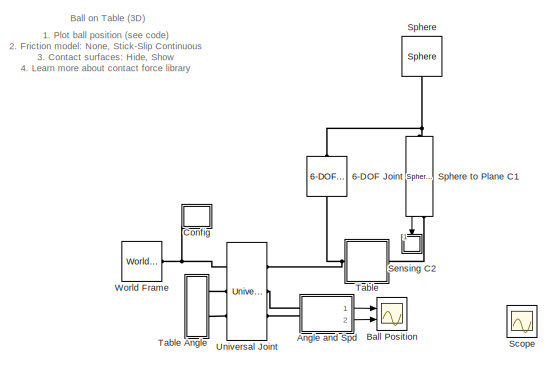
[diagram: root canvas - part 1/4, top left region]
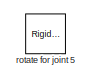
[diagram: root canvas - part 2/4, top right region]
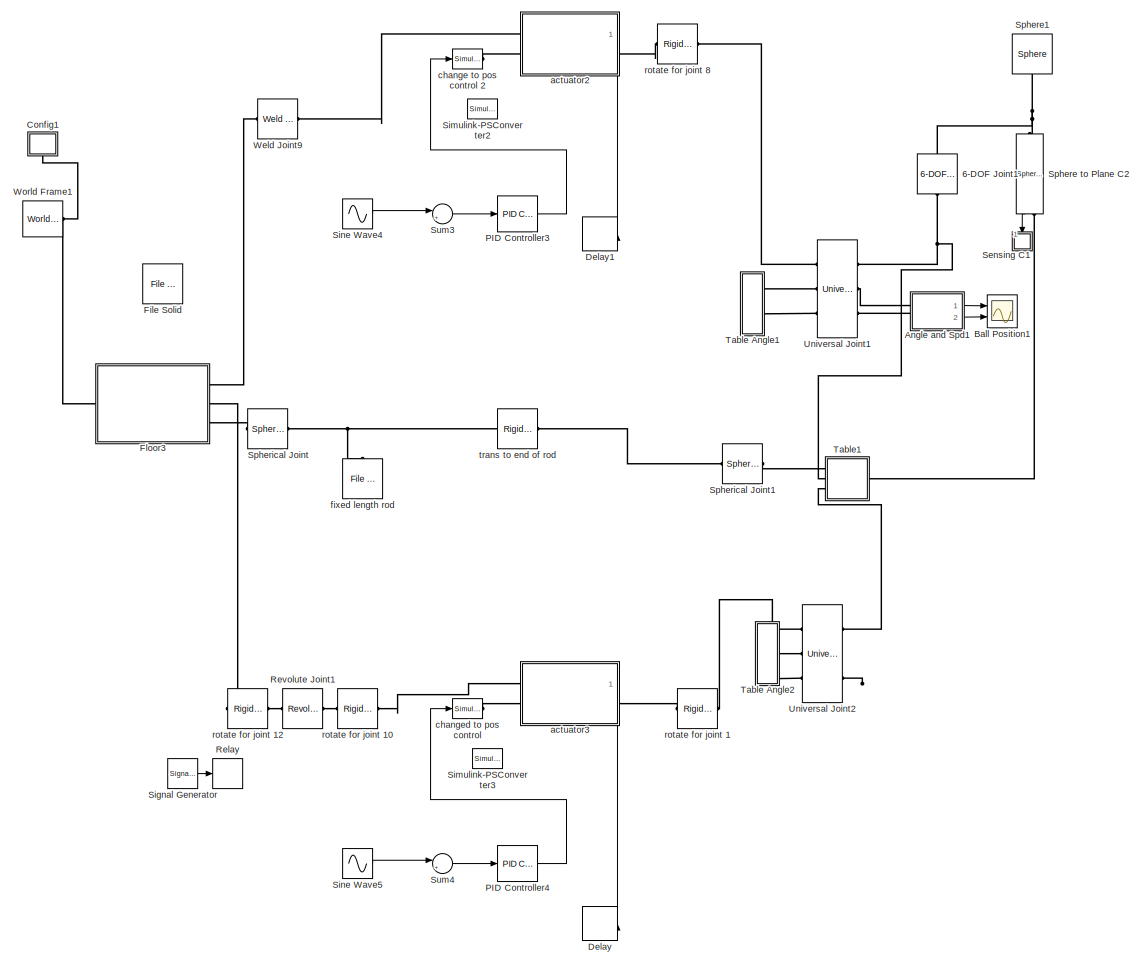
[diagram: root canvas - part 3/4, central region]
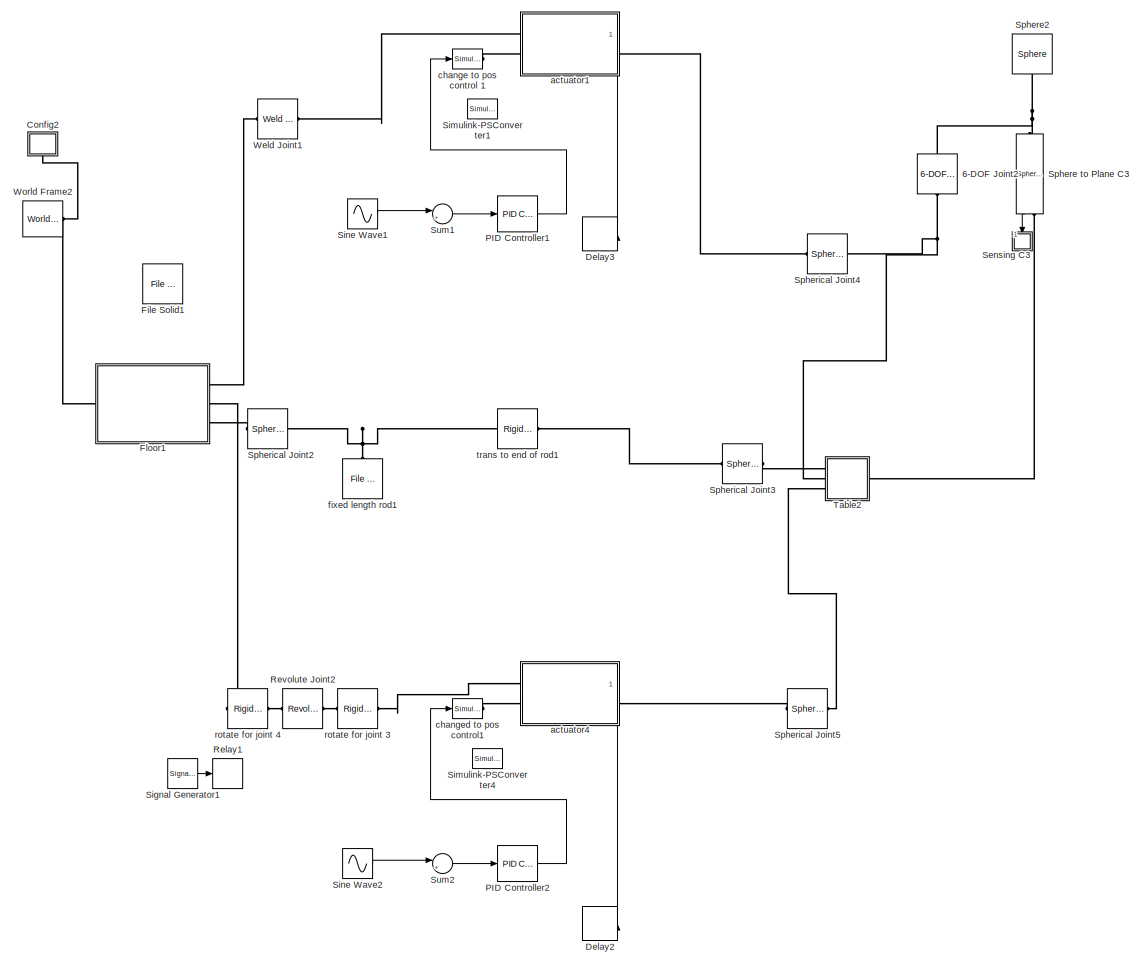
[diagram: root canvas - part 4/4, bottom right region]
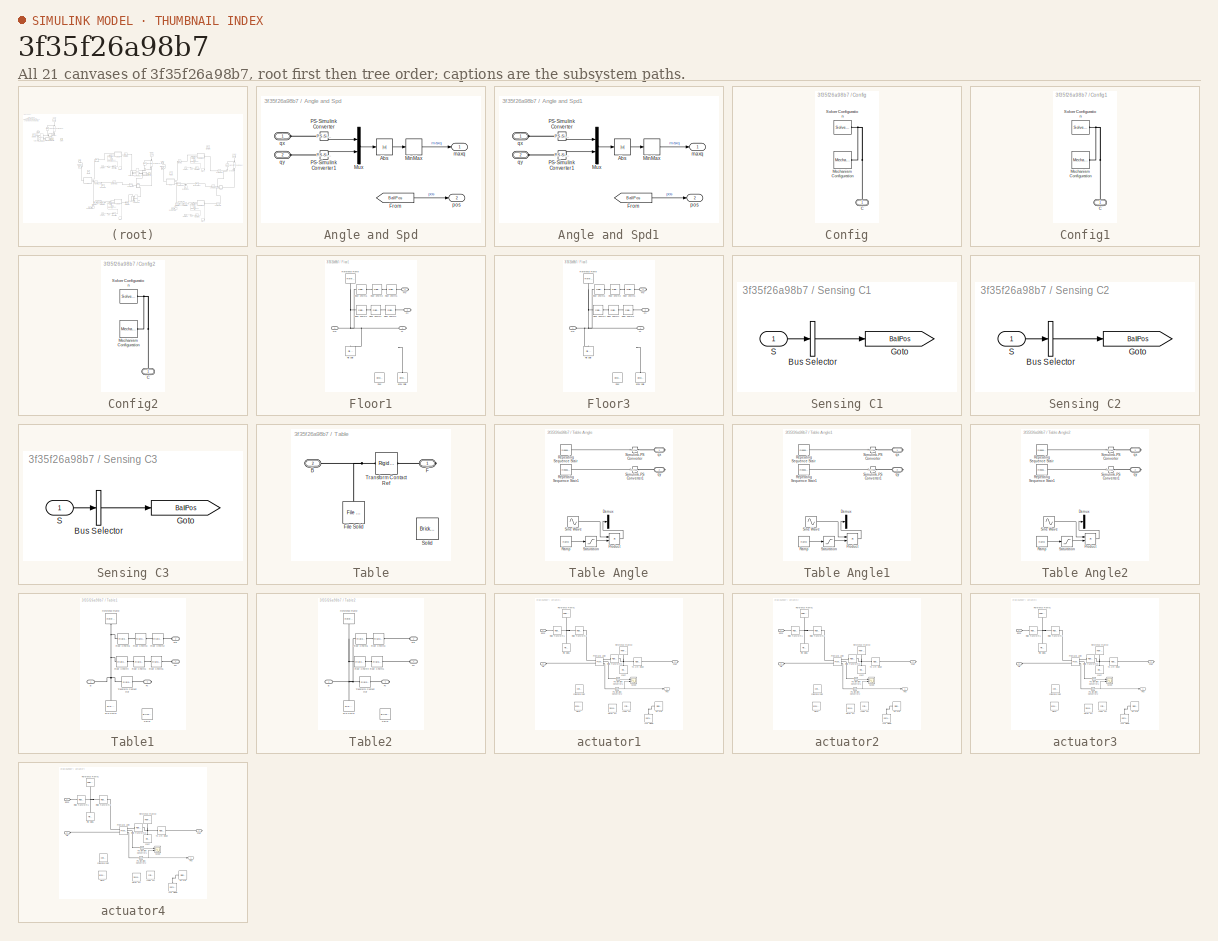
[diagram: thumbnail index - all 21 canvases of the model, root first then tree order]
MODEL slx_3f35f26a98b7
KIND model
CONFIG AbsTol = 1e-3
CONFIG EnableMultiTasking = on
CONFIG FixedStep = auto
CONFIG MaxStep = 1e-2
CONFIG MinStep = auto
CONFIG RelTol = 1e-3
CONFIG SampleTimeConstraint = Unconstrained
CONFIG SolverName = ode23t
CONFIG StartFcn = tic;
CONFIG StartTime = 0.0
CONFIG StopFcn = Elapsed_Sim_Time = toc;\ndisp(['Elapsed Sim Time = ' num2str(Elapsed_Sim_Time)]);\n
CONFIG StopTime = 10
WORKSPACE source: MATLAB code (in-file)
WORKSPACE code: ball.rad = 0.2;
WORKSPACE code: table.l = 3;
WORKSPACE code: table.h = 0.1;
WORKSPACE code: table.w = 3;
WORKSPACE code: ballTable.friction.muk = 0.6;
WORKSPACE code: ballTable.friction.mus = 0.7;
BLOCK [Reference] 6-DOF Joint  REF=sm_lib/Joints/6-DOF Joint
  Commented = on
  NameLocation = left
  Ports = [0, 0, 0, 0, 0, 1, 1]
  SourceBlock = sm_lib/Joints/6-DOF Joint
  SourceProductBaseCode = MS
  SourceType = 6-DOF Joint
BLOCK [Reference] 6-DOF Joint1  REF=sm_lib/Joints/6-DOF Joint
  Commented = on
  NameLocation = left
  Ports = [0, 0, 0, 0, 0, 1, 1]
  SourceBlock = sm_lib/Joints/6-DOF Joint
  SourceProductBaseCode = MS
  SourceType = 6-DOF Joint
BLOCK [Reference] 6-DOF Joint2  REF=sm_lib/Joints/6-DOF Joint
  NameLocation = left
  Ports = [0, 0, 0, 0, 0, 1, 1]
  SourceBlock = sm_lib/Joints/6-DOF Joint
  SourceProductBaseCode = MS
  SourceType = 6-DOF Joint
BLOCK [SubSystem] Angle and Spd
  Commented = on
  Ports = [0, 2, 0, 0, 0, 2]
  RequestExecContextInheritance = off
BLOCK [Abs] Angle and Spd/Abs
  SaturateOnIntegerOverflow = off
  ZeroCross = off
BLOCK [From] Angle and Spd/From
  GotoTag = BallPos
  TagVisibility = global
BLOCK [MinMax] Angle and Spd/MinMax
  Function = max
  Ports = [1, 1]
  ZeroCross = off
BLOCK [Mux] Angle and Spd/Mux
  DisplayOption = bar
  Inputs = 2
  Ports = [2, 1]
BLOCK [Reference] Angle and Spd/PS-Simulink Converter  REF=nesl_utility/PS-Simulink
Converter
  Ports = [0, 1, 0, 0, 0, 1]
  SourceBlock = nesl_utility/PS-Simulink\nConverter
  SourceProductBaseCode = PW,SS
  SourceType = PS-Simulink\nConverter
BLOCK [Reference] Angle and Spd/PS-Simulink Converter1  REF=nesl_utility/PS-Simulink
Converter
  Ports = [0, 1, 0, 0, 0, 1]
  SourceBlock = nesl_utility/PS-Simulink\nConverter
  SourceProductBaseCode = PW,SS
  SourceType = PS-Simulink\nConverter
BLOCK [Outport] Angle and Spd/maxq
  NameLocation = top
  VectorParamsAs1DForOutWhenUnconnected = off
BLOCK [Outport] Angle and Spd/pos
  Port = 2
  VectorParamsAs1DForOutWhenUnconnected = off
BLOCK [PMIOPort] Angle and Spd/qx
  Side = Left
BLOCK [PMIOPort] Angle and Spd/qy
  Port = 2
  Side = Left
BLOCK [SubSystem] Angle and Spd1
  Commented = on
  Ports = [0, 2, 0, 0, 0, 2]
  RequestExecContextInheritance = off
BLOCK [Abs] Angle and Spd1/Abs
  SaturateOnIntegerOverflow = off
  ZeroCross = off
BLOCK [From] Angle and Spd1/From
  GotoTag = BallPos
  TagVisibility = global
BLOCK [MinMax] Angle and Spd1/MinMax
  Function = max
  Ports = [1, 1]
  ZeroCross = off
BLOCK [Mux] Angle and Spd1/Mux
  DisplayOption = bar
  Inputs = 2
  Ports = [2, 1]
BLOCK [Reference] Angle and Spd1/PS-Simulink Converter  REF=nesl_utility/PS-Simulink
Converter
  Ports = [0, 1, 0, 0, 0, 1]
  SourceBlock = nesl_utility/PS-Simulink\nConverter
  SourceProductBaseCode = PW,SS
  SourceType = PS-Simulink\nConverter
BLOCK [Reference] Angle and Spd1/PS-Simulink Converter1  REF=nesl_utility/PS-Simulink
Converter
  Ports = [0, 1, 0, 0, 0, 1]
  SourceBlock = nesl_utility/PS-Simulink\nConverter
  SourceProductBaseCode = PW,SS
  SourceType = PS-Simulink\nConverter
BLOCK [Outport] Angle and Spd1/maxq
  NameLocation = top
  VectorParamsAs1DForOutWhenUnconnected = off
BLOCK [Outport] Angle and Spd1/pos
  Port = 2
  VectorParamsAs1DForOutWhenUnconnected = off
BLOCK [PMIOPort] Angle and Spd1/qx
  Side = Left
BLOCK [PMIOPort] Angle and Spd1/qy
  Port = 2
  Side = Left
BLOCK [Scope] Ball Position
  Commented = on
  Floating = off
  NumInputPorts = 2
  Ports = [2]
  ScopeSpecificationString = Simulink.scopes.TimeScopeBlockCfg('CurrentConfiguration', extmgr.ConfigurationSet(extmgr.Configuration('Core','General UI',true,'FigureColor',[0.501960784313725 0.501960784313725 0.501960784313725]),extmgr.Configuration('Core','Source UI',true),extmgr.Configuration('Sources','WiredSimulink',true,'DataLoggingSaveFormat','StructureWithTime','DataLoggingDecimation','1','DataLoggingDecimateData',true)...<+3768ch>
BLOCK [Scope] Ball Position1
  Commented = on
  Floating = off
  NumInputPorts = 2
  Ports = [2]
  ScopeSpecificationString = Simulink.scopes.TimeScopeBlockCfg('CurrentConfiguration', extmgr.ConfigurationSet(extmgr.Configuration('Core','General UI',true,'FigureColor',[0.501960784313725 0.501960784313725 0.501960784313725]),extmgr.Configuration('Core','Source UI',true),extmgr.Configuration('Sources','WiredSimulink',true,'DataLoggingSaveFormat','StructureWithTime','DataLoggingDecimation','1','DataLoggingDecimateData',true,...<+3807ch>
BLOCK [SubSystem] Config
  Commented = on
  NameLocation = right
  Ports = [0, 0, 0, 0, 0, 1]
  RequestExecContextInheritance = off
BLOCK [PMIOPort] Config/C
  NameLocation = right
  Side = Left
BLOCK [Reference] Config/Mechanism Configuration  REF=sm_lib/Utilities/Mechanism
Configuration
  Ports = [0, 0, 0, 0, 0, 0, 1]
  SourceBlock = sm_lib/Utilities/Mechanism\nConfiguration
  SourceProductBaseCode = MS
  SourceType = Mechanism\nConfiguration
BLOCK [Reference] Config/Solver Configuration  REF=nesl_utility/Solver
Configuration
  Ports = [0, 0, 0, 0, 0, 0, 1]
  SourceBlock = nesl_utility/Solver\nConfiguration
  SourceProductBaseCode = PW,SS
  SourceType = Solver\nConfiguration
BLOCK [SubSystem] Config1
  Commented = on
  NameLocation = right
  Ports = [0, 0, 0, 0, 0, 1]
  RequestExecContextInheritance = off
BLOCK [PMIOPort] Config1/C
  NameLocation = right
  Side = Left
BLOCK [Reference] Config1/Mechanism Configuration  REF=sm_lib/Utilities/Mechanism
Configuration
  Ports = [0, 0, 0, 0, 0, 0, 1]
  SourceBlock = sm_lib/Utilities/Mechanism\nConfiguration
  SourceProductBaseCode = MS
  SourceType = Mechanism\nConfiguration
BLOCK [Reference] Config1/Solver Configuration  REF=nesl_utility/Solver
Configuration
  Ports = [0, 0, 0, 0, 0, 0, 1]
  SourceBlock = nesl_utility/Solver\nConfiguration
  SourceProductBaseCode = PW,SS
  SourceType = Solver\nConfiguration
BLOCK [SubSystem] Config2
  NameLocation = right
  Ports = [0, 0, 0, 0, 0, 1]
  RequestExecContextInheritance = off
BLOCK [PMIOPort] Config2/C
  NameLocation = right
  Side = Left
BLOCK [Reference] Config2/Mechanism Configuration  REF=sm_lib/Utilities/Mechanism
Configuration
  Ports = [0, 0, 0, 0, 0, 0, 1]
  SourceBlock = sm_lib/Utilities/Mechanism\nConfiguration
  SourceProductBaseCode = MS
  SourceType = Mechanism\nConfiguration
BLOCK [Reference] Config2/Solver Configuration  REF=nesl_utility/Solver
Configuration
  Ports = [0, 0, 0, 0, 0, 0, 1]
  SourceBlock = nesl_utility/Solver\nConfiguration
  SourceProductBaseCode = PW,SS
  SourceType = Solver\nConfiguration
BLOCK [Delay] Delay
  Commented = on
  DelayLength = 1
  InitialCondition = 0
  InputPortMap = u0
  NameLocation = top
  Ports = [1, 1]
BLOCK [Delay] Delay1
  Commented = on
  DelayLength = 1
  InitialCondition = 0
  InputPortMap = u0
  NameLocation = top
  Ports = [1, 1]
BLOCK [Delay] Delay2
  DelayLength = 1
  InitialCondition = 0
  InputPortMap = u0
  NameLocation = top
  Ports = [1, 1]
BLOCK [Delay] Delay3
  DelayLength = 1
  InitialCondition = 0
  InputPortMap = u0
  NameLocation = top
  Ports = [1, 1]
BLOCK [Reference] File Solid  REF=sm_lib/Body Elements/File Solid
  Commented = on
  Ports = [0, 0, 0, 0, 0, 0, 1]
  SourceBlock = sm_lib/Body Elements/File Solid
  SourceProductBaseCode = MS
  SourceType = File Solid
BLOCK [Reference] File Solid1  REF=sm_lib/Body Elements/File Solid
  Ports = [0, 0, 0, 0, 0, 0, 1]
  SourceBlock = sm_lib/Body Elements/File Solid
  SourceProductBaseCode = MS
  SourceType = File Solid
BLOCK [SubSystem] Floor1
  Ports = [0, 0, 0, 0, 0, 1, 3]
  RequestExecContextInheritance = off
BLOCK [Reference] Floor1/Brick Solid  REF=sm_lib/Body Elements/Brick Solid
  NameLocation = right
  Ports = [0, 0, 0, 0, 0, 0, 1]
  SourceBlock = sm_lib/Body Elements/Brick Solid
  SourceProductBaseCode = MS
  SourceType = Brick Solid
BLOCK [PMIOPort] Floor1/Fc
  NameLocation = top
  Port = 4
  Side = Right
BLOCK [PMIOPort] Floor1/Ffb
  NameLocation = top
  Port = 2
  Side = Right
BLOCK [PMIOPort] Floor1/Ffr
  NameLocation = top
  Port = 3
  Side = Right
BLOCK [PMIOPort] Floor1/Ffw
  NameLocation = top
  Side = Left
BLOCK [Reference] Floor1/File Solid  REF=sm_lib/Body Elements/File Solid
  NameLocation = right
  Ports = [0, 0, 0, 0, 0, 0, 1]
  SourceBlock = sm_lib/Body Elements/File Solid
  SourceProductBaseCode = MS
  SourceType = File Solid
BLOCK [Reference] Floor1/Floor  REF=sm_lib/Body Elements/Brick Solid
  Commented = on
  NameLocation = right
  Ports = [0, 0, 0, 0, 0, 0, 1]
  SourceBlock = sm_lib/Body Elements/Brick Solid
  SourceProductBaseCode = MS
  SourceType = Brick Solid
BLOCK [Reference] Floor1/Floor XForm1  REF=sm_lib/Frames and
Transforms/Rigid
Transform
  NameLocation = top
  Ports = [0, 0, 0, 0, 0, 1, 1]
  SourceBlock = sm_lib/Frames and\nTransforms/Rigid\nTransform
  SourceProductBaseCode = MS
  SourceType = Rigid\nTransform
BLOCK [Reference] Floor1/Floor XForm2  REF=sm_lib/Frames and
Transforms/Rigid
Transform
  NameLocation = top
  Ports = [0, 0, 0, 0, 0, 1, 1]
  SourceBlock = sm_lib/Frames and\nTransforms/Rigid\nTransform
  SourceProductBaseCode = MS
  SourceType = Rigid\nTransform
BLOCK [Reference] Floor1/Floor XForm3  REF=sm_lib/Frames and
Transforms/Rigid
Transform
  NameLocation = top
  Ports = [0, 0, 0, 0, 0, 1, 1]
  SourceBlock = sm_lib/Frames and\nTransforms/Rigid\nTransform
  SourceProductBaseCode = MS
  SourceType = Rigid\nTransform
BLOCK [Reference] Floor1/Floor XForm4  REF=sm_lib/Frames and
Transforms/Rigid
Transform
  NameLocation = top
  Ports = [0, 0, 0, 0, 0, 1, 1]
  SourceBlock = sm_lib/Frames and\nTransforms/Rigid\nTransform
  SourceProductBaseCode = MS
  SourceType = Rigid\nTransform
BLOCK [Reference] Floor1/Floor XForm5  REF=sm_lib/Frames and
Transforms/Rigid
Transform
  NameLocation = top
  Ports = [0, 0, 0, 0, 0, 1, 1]
  SourceBlock = sm_lib/Frames and\nTransforms/Rigid\nTransform
  SourceProductBaseCode = MS
  SourceType = Rigid\nTransform
BLOCK [Reference] Floor1/Floor XForm6  REF=sm_lib/Frames and
Transforms/Rigid
Transform
  NameLocation = top
  Ports = [0, 0, 0, 0, 0, 1, 1]
  SourceBlock = sm_lib/Frames and\nTransforms/Rigid\nTransform
  SourceProductBaseCode = MS
  SourceType = Rigid\nTransform
BLOCK [Reference] Floor1/Reference Frame  REF=sm_lib/Frames and
Transforms/Reference
Frame
  NameLocation = left
  Ports = [0, 0, 0, 0, 0, 0, 1]
  SourceBlock = sm_lib/Frames and\nTransforms/Reference\nFrame
  SourceProductBaseCode = MS
  SourceType = Reference\nFrame
BLOCK [SubSystem] Floor3
  Commented = on
  Ports = [0, 0, 0, 0, 0, 1, 3]
  RequestExecContextInheritance = off
BLOCK [Reference] Floor3/Brick Solid  REF=sm_lib/Body Elements/Brick Solid
  NameLocation = right
  Ports = [0, 0, 0, 0, 0, 0, 1]
  SourceBlock = sm_lib/Body Elements/Brick Solid
  SourceProductBaseCode = MS
  SourceType = Brick Solid
BLOCK [PMIOPort] Floor3/Fc
  NameLocation = top
  Port = 4
  Side = Right
BLOCK [PMIOPort] Floor3/Ffb
  NameLocation = top
  Port = 2
  Side = Right
BLOCK [PMIOPort] Floor3/Ffr
  NameLocation = top
  Port = 3
  Side = Right
BLOCK [PMIOPort] Floor3/Ffw
  NameLocation = top
  Side = Left
BLOCK [Reference] Floor3/File Solid  REF=sm_lib/Body Elements/File Solid
  NameLocation = right
  Ports = [0, 0, 0, 0, 0, 0, 1]
  SourceBlock = sm_lib/Body Elements/File Solid
  SourceProductBaseCode = MS
  SourceType = File Solid
BLOCK [Reference] Floor3/Floor  REF=sm_lib/Body Elements/Brick Solid
  Commented = on
  NameLocation = right
  Ports = [0, 0, 0, 0, 0, 0, 1]
  SourceBlock = sm_lib/Body Elements/Brick Solid
  SourceProductBaseCode = MS
  SourceType = Brick Solid
BLOCK [Reference] Floor3/Floor XForm1  REF=sm_lib/Frames and
Transforms/Rigid
Transform
  NameLocation = top
  Ports = [0, 0, 0, 0, 0, 1, 1]
  SourceBlock = sm_lib/Frames and\nTransforms/Rigid\nTransform
  SourceProductBaseCode = MS
  SourceType = Rigid\nTransform
BLOCK [Reference] Floor3/Floor XForm2  REF=sm_lib/Frames and
Transforms/Rigid
Transform
  NameLocation = top
  Ports = [0, 0, 0, 0, 0, 1, 1]
  SourceBlock = sm_lib/Frames and\nTransforms/Rigid\nTransform
  SourceProductBaseCode = MS
  SourceType = Rigid\nTransform
BLOCK [Reference] Floor3/Floor XForm3  REF=sm_lib/Frames and
Transforms/Rigid
Transform
  NameLocation = top
  Ports = [0, 0, 0, 0, 0, 1, 1]
  SourceBlock = sm_lib/Frames and\nTransforms/Rigid\nTransform
  SourceProductBaseCode = MS
  SourceType = Rigid\nTransform
BLOCK [Reference] Floor3/Floor XForm4  REF=sm_lib/Frames and
Transforms/Rigid
Transform
  NameLocation = top
  Ports = [0, 0, 0, 0, 0, 1, 1]
  SourceBlock = sm_lib/Frames and\nTransforms/Rigid\nTransform
  SourceProductBaseCode = MS
  SourceType = Rigid\nTransform
BLOCK [Reference] Floor3/Floor XForm5  REF=sm_lib/Frames and
Transforms/Rigid
Transform
  NameLocation = top
  Ports = [0, 0, 0, 0, 0, 1, 1]
  SourceBlock = sm_lib/Frames and\nTransforms/Rigid\nTransform
  SourceProductBaseCode = MS
  SourceType = Rigid\nTransform
BLOCK [Reference] Floor3/Floor XForm6  REF=sm_lib/Frames and
Transforms/Rigid
Transform
  NameLocation = top
  Ports = [0, 0, 0, 0, 0, 1, 1]
  SourceBlock = sm_lib/Frames and\nTransforms/Rigid\nTransform
  SourceProductBaseCode = MS
  SourceType = Rigid\nTransform
BLOCK [Reference] Floor3/Reference Frame  REF=sm_lib/Frames and
Transforms/Reference
Frame
  NameLocation = left
  Ports = [0, 0, 0, 0, 0, 0, 1]
  SourceBlock = sm_lib/Frames and\nTransforms/Reference\nFrame
  SourceProductBaseCode = MS
  SourceType = Reference\nFrame
BLOCK [Reference] PID Controller1  REF=pid_lib/PID Controller
  Ports = [1, 1]
  SourceBlock = pid_lib/PID Controller
  SourceProductBaseCode = SL
  SourceType = PID 1dof
BLOCK [Reference] PID Controller2  REF=pid_lib/PID Controller
  Ports = [1, 1]
  SourceBlock = pid_lib/PID Controller
  SourceProductBaseCode = SL
  SourceType = PID 1dof
BLOCK [Reference] PID Controller3  REF=pid_lib/PID Controller
  Commented = on
  Ports = [1, 1]
  SourceBlock = pid_lib/PID Controller
  SourceProductBaseCode = SL
  SourceType = PID 1dof
BLOCK [Reference] PID Controller4  REF=pid_lib/PID Controller
  Commented = on
  Ports = [1, 1]
  SourceBlock = pid_lib/PID Controller
  SourceProductBaseCode = SL
  SourceType = PID 1dof
BLOCK [Relay] Relay
  Commented = on
BLOCK [Relay] Relay1
BLOCK [Reference] Revolute Joint1  REF=sm_lib/Joints/Revolute Joint
  Commented = on
  Ports = [0, 0, 0, 0, 0, 1, 1]
  SourceBlock = sm_lib/Joints/Revolute Joint
  SourceProductBaseCode = MS
  SourceType = Revolute Joint
BLOCK [Reference] Revolute Joint2  REF=sm_lib/Joints/Revolute Joint
  Ports = [0, 0, 0, 0, 0, 1, 1]
  SourceBlock = sm_lib/Joints/Revolute Joint
  SourceProductBaseCode = MS
  SourceType = Revolute Joint
BLOCK [Scope] Scope
  Floating = off
  IOType = viewer
  NumInputPorts = 1
  Ports = []
  ScopeSpecificationString = C++SS(StrPVP('Location','[610, 115, 1102, 652]'),StrPVP('Open','off'),MxPVP('AxesTitles',54,'struct(''axes1'',''%<SignalLabel>'')'),MxPVP('ScopeGraphics',57,'struct(''FigureColor'',''[0.5 0.5 0.5]'',''AxesColor'',''[0 0 0]'',''AxesTickColor'',''[1 1 1]'',''LineColors'',''[1 1 0;1 0 1;0 1 1;1 0 0;0 1 0;0 0 1]'',''LineStyles'',''-|-|-|-|-|-'',''LineWidths'',''[0.5 0.5 0.5 0.5 0.5 0.5]'',''MarkerStyl...<+304ch>
BLOCK [SubSystem] Sensing C1
  Commented = on
  NameLocation = left
  Ports = [1]
  RequestExecContextInheritance = off
BLOCK [BusSelector] Sensing C1/Bus Selector
  OutputAsBus = on
  OutputSignals = Frame Sep.x,Frame Sep.y
  Ports = [1, 1]
BLOCK [Goto] Sensing C1/Goto
  GotoTag = BallPos
  TagVisibility = global
BLOCK [Inport] Sensing C1/S
  NameLocation = top
BLOCK [SubSystem] Sensing C2
  Commented = on
  NameLocation = left
  Ports = [1]
  RequestExecContextInheritance = off
BLOCK [BusSelector] Sensing C2/Bus Selector
  OutputAsBus = on
  OutputSignals = Frame Sep.x,Frame Sep.y
  Ports = [1, 1]
BLOCK [Goto] Sensing C2/Goto
  GotoTag = BallPos
  TagVisibility = global
BLOCK [Inport] Sensing C2/S
  NameLocation = top
BLOCK [SubSystem] Sensing C3
  Commented = on
  NameLocation = left
  Ports = [1]
  RequestExecContextInheritance = off
BLOCK [BusSelector] Sensing C3/Bus Selector
  OutputAsBus = on
  OutputSignals = Frame Sep.x,Frame Sep.y
  Ports = [1, 1]
BLOCK [Goto] Sensing C3/Goto
  GotoTag = BallPos
  TagVisibility = global
BLOCK [Inport] Sensing C3/S
  NameLocation = top
BLOCK [SignalGenerator] Signal Generator
  Commented = on
  Ports = [0, 1]
  Units = rad/sec
  WaveForm = square
BLOCK [SignalGenerator] Signal Generator1
  Ports = [0, 1]
  Units = rad/sec
  WaveForm = square
BLOCK [Reference] Simulink-PSConverter1  REF=nesl_utility/Simulink-PS
Converter
  Ports = [1, 0, 0, 0, 0, 0, 1]
  SourceBlock = nesl_utility/Simulink-PS\nConverter
  SourceProductBaseCode = PW,SS
  SourceType = Simulink-PS\nConverter
BLOCK [Reference] Simulink-PSConverter2  REF=nesl_utility/Simulink-PS
Converter
  Commented = on
  Ports = [1, 0, 0, 0, 0, 0, 1]
  SourceBlock = nesl_utility/Simulink-PS\nConverter
  SourceProductBaseCode = PW,SS
  SourceType = Simulink-PS\nConverter
BLOCK [Reference] Simulink-PSConverter3  REF=nesl_utility/Simulink-PS
Converter
  Commented = on
  Ports = [1, 0, 0, 0, 0, 0, 1]
  SourceBlock = nesl_utility/Simulink-PS\nConverter
  SourceProductBaseCode = PW,SS
  SourceType = Simulink-PS\nConverter
BLOCK [Reference] Simulink-PSConverter4  REF=nesl_utility/Simulink-PS
Converter
  Ports = [1, 0, 0, 0, 0, 0, 1]
  SourceBlock = nesl_utility/Simulink-PS\nConverter
  SourceProductBaseCode = PW,SS
  SourceType = Simulink-PS\nConverter
BLOCK [Sin] Sine Wave1
  Amplitude = 10
  Ports = [0, 1]
  SampleTime = 0
BLOCK [Sin] Sine Wave2
  Amplitude = 5
  Ports = [0, 1]
  SampleTime = 0
BLOCK [Sin] Sine Wave4
  Amplitude = 30
  Commented = on
  Frequency = 10
  Ports = [0, 1]
  SampleTime = 0
BLOCK [Sin] Sine Wave5
  Amplitude = 30
  Commented = on
  Frequency = 10
  Ports = [0, 1]
  SampleTime = 0
BLOCK [Reference] Sphere  REF=Parts_Lib/Sphere
  Commented = on
  NameLocation = right
  Ports = [0, 0, 0, 0, 0, 1]
  SourceBlock = Parts_Lib/Sphere
  SourceType = Sphere with Markings
  Tag = CustomStyle
BLOCK [Reference] Sphere to Plane C1  REF=Contact_Forces_Lib/3D/Sphere to Plane Force
  Commented = on
  NameLocation = left
  Ports = [0, 1, 0, 0, 0, 1, 1]
  SourceBlock = Contact_Forces_Lib/3D/Sphere to Plane Force
  SourceProductName = Simscape Multibody Contact Forces Library
  SourceType = Sphere to Plane Force
BLOCK [Reference] Sphere to Plane C2  REF=Contact_Forces_Lib/3D/Sphere to Plane Force
  Commented = on
  NameLocation = left
  Ports = [0, 1, 0, 0, 0, 1, 1]
  SourceBlock = Contact_Forces_Lib/3D/Sphere to Plane Force
  SourceProductName = Simscape Multibody Contact Forces Library
  SourceType = Sphere to Plane Force
BLOCK [Reference] Sphere to Plane C3  REF=Contact_Forces_Lib/3D/Sphere to Plane Force
  NameLocation = left
  Ports = [0, 1, 0, 0, 0, 1, 1]
  SourceBlock = Contact_Forces_Lib/3D/Sphere to Plane Force
  SourceProductName = Simscape Multibody Contact Forces Library
  SourceType = Sphere to Plane Force
BLOCK [Reference] Sphere1  REF=Parts_Lib/Sphere
  Commented = on
  NameLocation = right
  Ports = [0, 0, 0, 0, 0, 1]
  SourceBlock = Parts_Lib/Sphere
  SourceType = Sphere with Markings
  Tag = CustomStyle
BLOCK [Reference] Sphere2  REF=Parts_Lib/Sphere
  NameLocation = right
  Ports = [0, 0, 0, 0, 0, 1]
  SourceBlock = Parts_Lib/Sphere
  SourceType = Sphere with Markings
  Tag = CustomStyle
BLOCK [Reference] Spherical Joint  REF=sm_lib/Joints/Spherical
Joint
  Commented = on
  Ports = [0, 0, 0, 0, 0, 1, 1]
  SourceBlock = sm_lib/Joints/Spherical\nJoint
  SourceProductBaseCode = MS
  SourceType = Spherical\nJoint
BLOCK [Reference] Spherical Joint1  REF=sm_lib/Joints/Spherical
Joint
  Commented = on
  NameLocation = top
  Ports = [0, 0, 0, 0, 0, 1, 1]
  SourceBlock = sm_lib/Joints/Spherical\nJoint
  SourceProductBaseCode = MS
  SourceType = Spherical\nJoint
BLOCK [Reference] Spherical Joint2  REF=sm_lib/Joints/Spherical
Joint
  Ports = [0, 0, 0, 0, 0, 1, 1]
  SourceBlock = sm_lib/Joints/Spherical\nJoint
  SourceProductBaseCode = MS
  SourceType = Spherical\nJoint
BLOCK [Reference] Spherical Joint3  REF=sm_lib/Joints/Spherical
Joint
  NameLocation = top
  Ports = [0, 0, 0, 0, 0, 1, 1]
  SourceBlock = sm_lib/Joints/Spherical\nJoint
  SourceProductBaseCode = MS
  SourceType = Spherical\nJoint
BLOCK [Reference] Spherical Joint4  REF=sm_lib/Joints/Spherical
Joint
  Ports = [0, 0, 0, 0, 0, 1, 1]
  SourceBlock = sm_lib/Joints/Spherical\nJoint
  SourceProductBaseCode = MS
  SourceType = Spherical\nJoint
BLOCK [Reference] Spherical Joint5  REF=sm_lib/Joints/Spherical
Joint
  Ports = [0, 0, 0, 0, 0, 1, 1]
  SourceBlock = sm_lib/Joints/Spherical\nJoint
  SourceProductBaseCode = MS
  SourceType = Spherical\nJoint
BLOCK [Sum] Sum1
  Inputs = |+-
  Ports = [2, 1]
BLOCK [Sum] Sum2
  Inputs = |+-
  Ports = [2, 1]
BLOCK [Sum] Sum3
  Commented = on
  Inputs = |+-
  Ports = [2, 1]
BLOCK [Sum] Sum4
  Commented = on
  Inputs = |+-
  Ports = [2, 1]
BLOCK [SubSystem] Table
  Commented = on
  NameLocation = top
  Ports = [0, 0, 0, 0, 0, 1, 1]
  RequestExecContextInheritance = off
  Tag = CustomStyle
BLOCK [SubSystem] Table Angle
  Commented = on
  Ports = [0, 0, 0, 0, 0, 0, 2]
  RequestExecContextInheritance = off
BLOCK [Demux] Table Angle/Demux
  Commented = on
  Outputs = 2
  Ports = [1, 2]
BLOCK [Product] Table Angle/Product
  Commented = on
  Ports = [2, 1]
BLOCK [Reference] Table Angle/Ramp  REF=simulink/Sources/Ramp
  Commented = on
  Ports = [0, 1]
  SourceBlock = simulink/Sources/Ramp
  SourceProductBaseCode = SL
  SourceType = Ramp
BLOCK [Reference] Table Angle/Repeating Sequence Stair  REF=simulink/Sources/Repeating
Sequence
Stair
  Ports = [0, 1]
  SourceBlock = simulink/Sources/Repeating\nSequence\nStair
  SourceProductBaseCode = SL
  SourceType = Repeating Sequence Stair
BLOCK [Reference] Table Angle/Repeating Sequence Stair1  REF=simulink/Sources/Repeating
Sequence
Stair
  Ports = [0, 1]
  SourceBlock = simulink/Sources/Repeating\nSequence\nStair
  SourceProductBaseCode = SL
  SourceType = Repeating Sequence Stair
BLOCK [Saturate] Table Angle/Saturation
  Commented = on
  LowerLimit = 0
  UpperLimit = 1
BLOCK [Reference] Table Angle/Simulink-PS Converter  REF=nesl_utility/Simulink-PS
Converter
  Ports = [1, 0, 0, 0, 0, 0, 1]
  SourceBlock = nesl_utility/Simulink-PS\nConverter
  SourceProductBaseCode = PW,SS
  SourceType = Simulink-PS\nConverter
BLOCK [Reference] Table Angle/Simulink-PS Converter1  REF=nesl_utility/Simulink-PS
Converter
  Ports = [1, 0, 0, 0, 0, 0, 1]
  SourceBlock = nesl_utility/Simulink-PS\nConverter
  SourceProductBaseCode = PW,SS
  SourceType = Simulink-PS\nConverter
BLOCK [Sin] Table Angle/Sine Wave
  Amplitude = [1 1]*15
  Bias = [1 1]*0
  Commented = on
  Frequency = [1 1]*360*(pi/180)/2
  Phase = [0 pi/2]
  Ports = [0, 1]
  SampleTime = 0
BLOCK [PMIOPort] Table Angle/qx
  Side = Right
BLOCK [PMIOPort] Table Angle/qy
  Port = 2
  Side = Right
BLOCK [SubSystem] Table Angle1
  Commented = on
  Ports = [0, 0, 0, 0, 0, 0, 2]
  RequestExecContextInheritance = off
BLOCK [Demux] Table Angle1/Demux
  Commented = on
  Outputs = 2
  Ports = [1, 2]
BLOCK [Product] Table Angle1/Product
  Commented = on
  Ports = [2, 1]
BLOCK [Reference] Table Angle1/Ramp  REF=simulink/Sources/Ramp
  Commented = on
  Ports = [0, 1]
  SourceBlock = simulink/Sources/Ramp
  SourceProductBaseCode = SL
  SourceType = Ramp
BLOCK [Reference] Table Angle1/Repeating Sequence Stair  REF=simulink/Sources/Repeating
Sequence
Stair
  Ports = [0, 1]
  SourceBlock = simulink/Sources/Repeating\nSequence\nStair
  SourceProductBaseCode = SL
  SourceType = Repeating Sequence Stair
BLOCK [Reference] Table Angle1/Repeating Sequence Stair1  REF=simulink/Sources/Repeating
Sequence
Stair
  Ports = [0, 1]
  SourceBlock = simulink/Sources/Repeating\nSequence\nStair
  SourceProductBaseCode = SL
  SourceType = Repeating Sequence Stair
BLOCK [Saturate] Table Angle1/Saturation
  Commented = on
  LowerLimit = 0
  UpperLimit = 1
BLOCK [Reference] Table Angle1/Simulink-PS Converter  REF=nesl_utility/Simulink-PS
Converter
  Ports = [1, 0, 0, 0, 0, 0, 1]
  SourceBlock = nesl_utility/Simulink-PS\nConverter
  SourceProductBaseCode = PW,SS
  SourceType = Simulink-PS\nConverter
BLOCK [Reference] Table Angle1/Simulink-PS Converter1  REF=nesl_utility/Simulink-PS
Converter
  Ports = [1, 0, 0, 0, 0, 0, 1]
  SourceBlock = nesl_utility/Simulink-PS\nConverter
  SourceProductBaseCode = PW,SS
  SourceType = Simulink-PS\nConverter
BLOCK [Sin] Table Angle1/Sine Wave
  Amplitude = [1 1]*15
  Bias = [1 1]*0
  Commented = on
  Frequency = [1 1]*360*(pi/180)/2
  Phase = [0 pi/2]
  Ports = [0, 1]
  SampleTime = 0
BLOCK [PMIOPort] Table Angle1/qx
  Side = Right
BLOCK [PMIOPort] Table Angle1/qy
  Port = 2
  Side = Right
BLOCK [SubSystem] Table Angle2
  Commented = on
  Ports = [0, 0, 0, 0, 0, 0, 2]
  RequestExecContextInheritance = off
BLOCK [Demux] Table Angle2/Demux
  Commented = on
  Outputs = 2
  Ports = [1, 2]
BLOCK [Product] Table Angle2/Product
  Commented = on
  Ports = [2, 1]
BLOCK [Reference] Table Angle2/Ramp  REF=simulink/Sources/Ramp
  Commented = on
  Ports = [0, 1]
  SourceBlock = simulink/Sources/Ramp
  SourceProductBaseCode = SL
  SourceType = Ramp
BLOCK [Reference] Table Angle2/Repeating Sequence Stair  REF=simulink/Sources/Repeating
Sequence
Stair
  Ports = [0, 1]
  SourceBlock = simulink/Sources/Repeating\nSequence\nStair
  SourceProductBaseCode = SL
  SourceType = Repeating Sequence Stair
BLOCK [Reference] Table Angle2/Repeating Sequence Stair1  REF=simulink/Sources/Repeating
Sequence
Stair
  Ports = [0, 1]
  SourceBlock = simulink/Sources/Repeating\nSequence\nStair
  SourceProductBaseCode = SL
  SourceType = Repeating Sequence Stair
BLOCK [Saturate] Table Angle2/Saturation
  Commented = on
  LowerLimit = 0
  UpperLimit = 1
BLOCK [Reference] Table Angle2/Simulink-PS Converter  REF=nesl_utility/Simulink-PS
Converter
  Ports = [1, 0, 0, 0, 0, 0, 1]
  SourceBlock = nesl_utility/Simulink-PS\nConverter
  SourceProductBaseCode = PW,SS
  SourceType = Simulink-PS\nConverter
BLOCK [Reference] Table Angle2/Simulink-PS Converter1  REF=nesl_utility/Simulink-PS
Converter
  Ports = [1, 0, 0, 0, 0, 0, 1]
  SourceBlock = nesl_utility/Simulink-PS\nConverter
  SourceProductBaseCode = PW,SS
  SourceType = Simulink-PS\nConverter
BLOCK [Sin] Table Angle2/Sine Wave
  Amplitude = [1 1]*15
  Bias = [1 1]*0
  Commented = on
  Frequency = [1 1]*360*(pi/180)/2
  Phase = [0 pi/2]
  Ports = [0, 1]
  SampleTime = 0
BLOCK [PMIOPort] Table Angle2/qx
  Side = Right
BLOCK [PMIOPort] Table Angle2/qy
  Port = 2
  Side = Right
BLOCK [PMIOPort] Table/B
  Port = 2
  Side = Left
BLOCK [PMIOPort] Table/F
  Side = Right
BLOCK [Reference] Table/File Solid  REF=sm_lib/Body Elements/File Solid
  NameLocation = right
  Ports = [0, 0, 0, 0, 0, 0, 1]
  SourceBlock = sm_lib/Body Elements/File Solid
  SourceProductBaseCode = MS
  SourceType = File Solid
BLOCK [Reference] Table/Solid  REF=sm_lib/Body Elements/Brick Solid
  NameLocation = right
  Ports = [0, 0, 0, 0, 0, 0, 1]
  SourceBlock = sm_lib/Body Elements/Brick Solid
  SourceProductBaseCode = MS
  SourceType = Brick Solid
BLOCK [Reference] Table/Transform Contact Ref  REF=sm_lib/Frames and
Transforms/Rigid
Transform
  Ports = [0, 0, 0, 0, 0, 1, 1]
  SourceBlock = sm_lib/Frames and\nTransforms/Rigid\nTransform
  SourceProductBaseCode = MS
  SourceType = Rigid\nTransform
BLOCK [SubSystem] Table1
  Commented = on
  NameLocation = top
  Ports = [0, 0, 0, 0, 0, 3, 1]
  RequestExecContextInheritance = off
  Tag = CustomStyle
BLOCK [PMIOPort] Table1/B
  Side = Left
BLOCK [PMIOPort] Table1/Fc
  Port = 4
  Side = Right
BLOCK [PMIOPort] Table1/Ffb
  NameLocation = top
  Port = 2
  Side = Left
BLOCK [PMIOPort] Table1/Ffr
  NameLocation = top
  Port = 3
  Side = Left
BLOCK [Reference] Table1/File Solid  REF=sm_lib/Body Elements/File Solid
  NameLocation = right
  Ports = [0, 0, 0, 0, 0, 0, 1]
  SourceBlock = sm_lib/Body Elements/File Solid
  SourceProductBaseCode = MS
  SourceType = File Solid
BLOCK [Reference] Table1/Floor XForm1  REF=sm_lib/Frames and
Transforms/Rigid
Transform
  NameLocation = top
  Ports = [0, 0, 0, 0, 0, 1, 1]
  SourceBlock = sm_lib/Frames and\nTransforms/Rigid\nTransform
  SourceProductBaseCode = MS
  SourceType = Rigid\nTransform
BLOCK [Reference] Table1/Floor XForm2  REF=sm_lib/Frames and
Transforms/Rigid
Transform
  NameLocation = top
  Ports = [0, 0, 0, 0, 0, 1, 1]
  SourceBlock = sm_lib/Frames and\nTransforms/Rigid\nTransform
  SourceProductBaseCode = MS
  SourceType = Rigid\nTransform
BLOCK [Reference] Table1/Floor XForm3  REF=sm_lib/Frames and
Transforms/Rigid
Transform
  NameLocation = top
  Ports = [0, 0, 0, 0, 0, 1, 1]
  SourceBlock = sm_lib/Frames and\nTransforms/Rigid\nTransform
  SourceProductBaseCode = MS
  SourceType = Rigid\nTransform
BLOCK [Reference] Table1/Floor XForm4  REF=sm_lib/Frames and
Transforms/Rigid
Transform
  NameLocation = top
  Ports = [0, 0, 0, 0, 0, 1, 1]
  SourceBlock = sm_lib/Frames and\nTransforms/Rigid\nTransform
  SourceProductBaseCode = MS
  SourceType = Rigid\nTransform
BLOCK [Reference] Table1/Floor XForm5  REF=sm_lib/Frames and
Transforms/Rigid
Transform
  NameLocation = top
  Ports = [0, 0, 0, 0, 0, 1, 1]
  SourceBlock = sm_lib/Frames and\nTransforms/Rigid\nTransform
  SourceProductBaseCode = MS
  SourceType = Rigid\nTransform
BLOCK [Reference] Table1/Floor XForm6  REF=sm_lib/Frames and
Transforms/Rigid
Transform
  NameLocation = top
  Ports = [0, 0, 0, 0, 0, 1, 1]
  SourceBlock = sm_lib/Frames and\nTransforms/Rigid\nTransform
  SourceProductBaseCode = MS
  SourceType = Rigid\nTransform
BLOCK [Reference] Table1/Reference Frame  REF=sm_lib/Frames and
Transforms/Reference
Frame
  NameLocation = left
  Ports = [0, 0, 0, 0, 0, 0, 1]
  SourceBlock = sm_lib/Frames and\nTransforms/Reference\nFrame
  SourceProductBaseCode = MS
  SourceType = Reference\nFrame
BLOCK [Reference] Table1/Solid  REF=sm_lib/Body Elements/Brick Solid
  NameLocation = right
  Ports = [0, 0, 0, 0, 0, 0, 1]
  SourceBlock = sm_lib/Body Elements/Brick Solid
  SourceProductBaseCode = MS
  SourceType = Brick Solid
BLOCK [Reference] Table1/Transform Contact Ref  REF=sm_lib/Frames and
Transforms/Rigid
Transform
  Ports = [0, 0, 0, 0, 0, 1, 1]
  SourceBlock = sm_lib/Frames and\nTransforms/Rigid\nTransform
  SourceProductBaseCode = MS
  SourceType = Rigid\nTransform
BLOCK [SubSystem] Table2
  NameLocation = top
  Ports = [0, 0, 0, 0, 0, 3, 1]
  RequestExecContextInheritance = off
  Tag = CustomStyle
BLOCK [PMIOPort] Table2/B
  Side = Left
BLOCK [PMIOPort] Table2/Fc
  Port = 4
  Side = Right
BLOCK [PMIOPort] Table2/Ffb
  NameLocation = top
  Port = 2
  Side = Left
BLOCK [PMIOPort] Table2/Ffr
  NameLocation = top
  Port = 3
  Side = Left
BLOCK [Reference] Table2/File Solid  REF=sm_lib/Body Elements/File Solid
  NameLocation = right
  Ports = [0, 0, 0, 0, 0, 0, 1]
  SourceBlock = sm_lib/Body Elements/File Solid
  SourceProductBaseCode = MS
  SourceType = File Solid
BLOCK [Reference] Table2/Floor XForm1  REF=sm_lib/Frames and
Transforms/Rigid
Transform
  NameLocation = top
  Ports = [0, 0, 0, 0, 0, 1, 1]
  SourceBlock = sm_lib/Frames and\nTransforms/Rigid\nTransform
  SourceProductBaseCode = MS
  SourceType = Rigid\nTransform
BLOCK [Reference] Table2/Floor XForm3  REF=sm_lib/Frames and
Transforms/Rigid
Transform
  NameLocation = top
  Ports = [0, 0, 0, 0, 0, 1, 1]
  SourceBlock = sm_lib/Frames and\nTransforms/Rigid\nTransform
  SourceProductBaseCode = MS
  SourceType = Rigid\nTransform
BLOCK [Reference] Table2/Floor XForm4  REF=sm_lib/Frames and
Transforms/Rigid
Transform
  NameLocation = top
  Ports = [0, 0, 0, 0, 0, 1, 1]
  SourceBlock = sm_lib/Frames and\nTransforms/Rigid\nTransform
  SourceProductBaseCode = MS
  SourceType = Rigid\nTransform
BLOCK [Reference] Table2/Floor XForm6  REF=sm_lib/Frames and
Transforms/Rigid
Transform
  NameLocation = top
  Ports = [0, 0, 0, 0, 0, 1, 1]
  SourceBlock = sm_lib/Frames and\nTransforms/Rigid\nTransform
  SourceProductBaseCode = MS
  SourceType = Rigid\nTransform
BLOCK [Reference] Table2/Reference Frame  REF=sm_lib/Frames and
Transforms/Reference
Frame
  NameLocation = left
  Ports = [0, 0, 0, 0, 0, 0, 1]
  SourceBlock = sm_lib/Frames and\nTransforms/Reference\nFrame
  SourceProductBaseCode = MS
  SourceType = Reference\nFrame
BLOCK [Reference] Table2/Solid  REF=sm_lib/Body Elements/Brick Solid
  NameLocation = right
  Ports = [0, 0, 0, 0, 0, 0, 1]
  SourceBlock = sm_lib/Body Elements/Brick Solid
  SourceProductBaseCode = MS
  SourceType = Brick Solid
BLOCK [Reference] Table2/Transform Contact Ref  REF=sm_lib/Frames and
Transforms/Rigid
Transform
  Ports = [0, 0, 0, 0, 0, 1, 1]
  SourceBlock = sm_lib/Frames and\nTransforms/Rigid\nTransform
  SourceProductBaseCode = MS
  SourceType = Rigid\nTransform
BLOCK [Reference] Universal Joint  REF=sm_lib/Joints/Universal
Joint
  Commented = on
  Ports = [0, 0, 0, 0, 0, 3, 3]
  SourceBlock = sm_lib/Joints/Universal\nJoint
  SourceProductBaseCode = MS
  SourceType = Universal\nJoint
BLOCK [Reference] Universal Joint1  REF=sm_lib/Joints/Universal
Joint
  Commented = on
  Ports = [0, 0, 0, 0, 0, 3, 3]
  SourceBlock = sm_lib/Joints/Universal\nJoint
  SourceProductBaseCode = MS
  SourceType = Universal\nJoint
BLOCK [Reference] Universal Joint2  REF=sm_lib/Joints/Universal
Joint
  Commented = on
  Ports = [0, 0, 0, 0, 0, 3, 3]
  SourceBlock = sm_lib/Joints/Universal\nJoint
  SourceProductBaseCode = MS
  SourceType = Universal\nJoint
BLOCK [Reference] Weld Joint1  REF=sm_lib/Joints/Weld Joint
  Ports = [0, 0, 0, 0, 0, 1, 1]
  SourceBlock = sm_lib/Joints/Weld Joint
  SourceProductBaseCode = MS
  SourceType = Weld Joint
BLOCK [Reference] Weld Joint9  REF=sm_lib/Joints/Weld Joint
  Commented = on
  Ports = [0, 0, 0, 0, 0, 1, 1]
  SourceBlock = sm_lib/Joints/Weld Joint
  SourceProductBaseCode = MS
  SourceType = Weld Joint
BLOCK [Reference] World Frame  REF=sm_lib/Frames and
Transforms/World Frame
  Commented = on
  Ports = [0, 0, 0, 0, 0, 0, 1]
  SourceBlock = sm_lib/Frames and\nTransforms/World Frame
  SourceProductBaseCode = MS
  SourceType = World Frame
BLOCK [Reference] World Frame1  REF=sm_lib/Frames and
Transforms/World Frame
  Commented = on
  Ports = [0, 0, 0, 0, 0, 0, 1]
  SourceBlock = sm_lib/Frames and\nTransforms/World Frame
  SourceProductBaseCode = MS
  SourceType = World Frame
BLOCK [Reference] World Frame2  REF=sm_lib/Frames and
Transforms/World Frame
  Ports = [0, 0, 0, 0, 0, 0, 1]
  SourceBlock = sm_lib/Frames and\nTransforms/World Frame
  SourceProductBaseCode = MS
  SourceType = World Frame
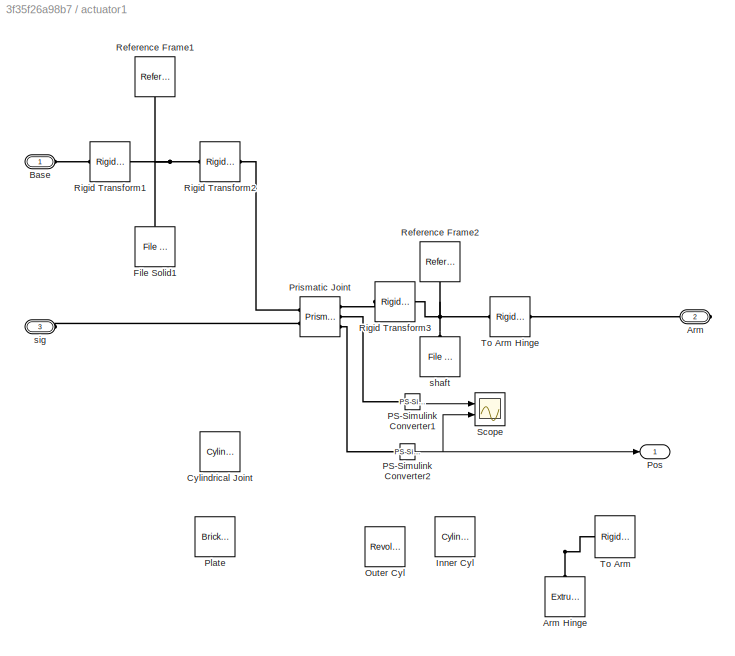
BLOCK [SubSystem] actuator1
  Ports = [0, 1, 0, 0, 0, 2, 1]
  RequestExecContextInheritance = off
BLOCK [PMIOPort] actuator1/Arm
  Port = 2
  Side = Right
BLOCK [Reference] actuator1/Arm Hinge  REF=sm_lib/Body Elements/Extruded Solid
  Commented = on
  Ports = [0, 0, 0, 0, 0, 0, 1]
  SourceBlock = sm_lib/Body Elements/Extruded Solid
  SourceProductBaseCode = MS
  SourceType = Extruded Solid
BLOCK [PMIOPort] actuator1/Base
  Side = Left
BLOCK [Reference] actuator1/Cylindrical Joint  REF=sm_lib/Joints/Cylindrical
Joint
  Commented = on
  Ports = [0, 0, 0, 0, 0, 2, 1]
  SourceBlock = sm_lib/Joints/Cylindrical\nJoint
  SourceProductBaseCode = MS
  SourceType = Cylindrical\nJoint
BLOCK [Reference] actuator1/File Solid1  REF=sm_lib/Body Elements/File Solid
  NameLocation = right
  Ports = [0, 0, 0, 0, 0, 0, 1]
  SourceBlock = sm_lib/Body Elements/File Solid
  SourceProductBaseCode = MS
  SourceType = File Solid
BLOCK [Reference] actuator1/Inner Cyl  REF=sm_lib/Body Elements/Cylindrical Solid
  Commented = on
  Ports = [0, 0, 0, 0, 0, 1, 1]
  SourceBlock = sm_lib/Body Elements/Cylindrical Solid
  SourceProductBaseCode = MS
  SourceType = Cylindrical Solid
BLOCK [Reference] actuator1/Outer Cyl  REF=sm_lib/Body Elements/Revolved Solid
  Commented = on
  Ports = [0, 0, 0, 0, 0, 1, 1]
  SourceBlock = sm_lib/Body Elements/Revolved Solid
  SourceProductBaseCode = MS
  SourceType = Revolved Solid
BLOCK [Reference] actuator1/PS-Simulink Converter1  REF=nesl_utility/PS-Simulink
Converter
  Ports = [0, 1, 0, 0, 0, 1]
  SourceBlock = nesl_utility/PS-Simulink\nConverter
  SourceProductBaseCode = PW,SS
  SourceType = PS-Simulink\nConverter
BLOCK [Reference] actuator1/PS-Simulink Converter2  REF=nesl_utility/PS-Simulink
Converter
  Ports = [0, 1, 0, 0, 0, 1]
  SourceBlock = nesl_utility/PS-Simulink\nConverter
  SourceProductBaseCode = PW,SS
  SourceType = PS-Simulink\nConverter
BLOCK [Reference] actuator1/Plate  REF=sm_lib/Body Elements/Brick Solid
  Commented = on
  Ports = [0, 0, 0, 0, 0, 1, 1]
  SourceBlock = sm_lib/Body Elements/Brick Solid
  SourceProductBaseCode = MS
  SourceType = Brick Solid
BLOCK [Outport] actuator1/Pos
BLOCK [Reference] actuator1/Prismatic Joint  REF=sm_lib/Joints/Prismatic
Joint
  Ports = [0, 0, 0, 0, 0, 2, 3]
  SourceBlock = sm_lib/Joints/Prismatic\nJoint
  SourceProductBaseCode = MS
  SourceType = Prismatic\nJoint
BLOCK [Reference] actuator1/Reference Frame1  REF=sm_lib/Frames and
Transforms/Reference
Frame
  NameLocation = left
  Ports = [0, 0, 0, 0, 0, 0, 1]
  SourceBlock = sm_lib/Frames and\nTransforms/Reference\nFrame
  SourceProductBaseCode = MS
  SourceType = Reference\nFrame
BLOCK [Reference] actuator1/Reference Frame2  REF=sm_lib/Frames and
Transforms/Reference
Frame
  NameLocation = left
  Ports = [0, 0, 0, 0, 0, 0, 1]
  SourceBlock = sm_lib/Frames and\nTransforms/Reference\nFrame
  SourceProductBaseCode = MS
  SourceType = Reference\nFrame
BLOCK [Reference] actuator1/Rigid Transform1  REF=sm_lib/Frames and
Transforms/Rigid
Transform
  NameLocation = top
  Ports = [0, 0, 0, 0, 0, 1, 1]
  SourceBlock = sm_lib/Frames and\nTransforms/Rigid\nTransform
  SourceProductBaseCode = MS
  SourceType = Rigid\nTransform
BLOCK [Reference] actuator1/Rigid Transform2  REF=sm_lib/Frames and
Transforms/Rigid
Transform
  Ports = [0, 0, 0, 0, 0, 1, 1]
  SourceBlock = sm_lib/Frames and\nTransforms/Rigid\nTransform
  SourceProductBaseCode = MS
  SourceType = Rigid\nTransform
BLOCK [Reference] actuator1/Rigid Transform3  REF=sm_lib/Frames and
Transforms/Rigid
Transform
  NameLocation = top
  Ports = [0, 0, 0, 0, 0, 1, 1]
  SourceBlock = sm_lib/Frames and\nTransforms/Rigid\nTransform
  SourceProductBaseCode = MS
  SourceType = Rigid\nTransform
BLOCK [Scope] actuator1/Scope
  Floating = off
  NumInputPorts = 2
  Ports = [2]
  ScopeSpecificationString = Simulink.scopes.TimeScopeBlockCfg('CurrentConfiguration', extmgr.ConfigurationSet(extmgr.Configuration('Core','General UI',true),extmgr.Configuration('Core','Source UI',true),extmgr.Configuration('Sources','WiredSimulink',true,'DataLoggingVariableName','ScopeData1'),extmgr.Configuration('Visuals','Time Domain',true),extmgr.Configuration('Tools','Plot Navigation',true),extmgr.Configuration('Tools',...<+40ch>  <repeated x4 — deduplicated; at blocks: Scope>
BLOCK [Reference] actuator1/To Arm  REF=sm_lib/Frames and
Transforms/Rigid
Transform
  Commented = on
  Ports = [0, 0, 0, 0, 0, 1, 1]
  SourceBlock = sm_lib/Frames and\nTransforms/Rigid\nTransform
  SourceProductBaseCode = MS
  SourceType = Rigid\nTransform
BLOCK [Reference] actuator1/To Arm Hinge  REF=sm_lib/Frames and
Transforms/Rigid
Transform
  Ports = [0, 0, 0, 0, 0, 1, 1]
  SourceBlock = sm_lib/Frames and\nTransforms/Rigid\nTransform
  SourceProductBaseCode = MS
  SourceType = Rigid\nTransform
BLOCK [Reference] actuator1/shaft  REF=sm_lib/Body Elements/File Solid
  NameLocation = right
  Ports = [0, 0, 0, 0, 0, 0, 1]
  SourceBlock = sm_lib/Body Elements/File Solid
  SourceProductBaseCode = MS
  SourceType = File Solid
BLOCK [PMIOPort] actuator1/sig
  Port = 3
  Side = Left
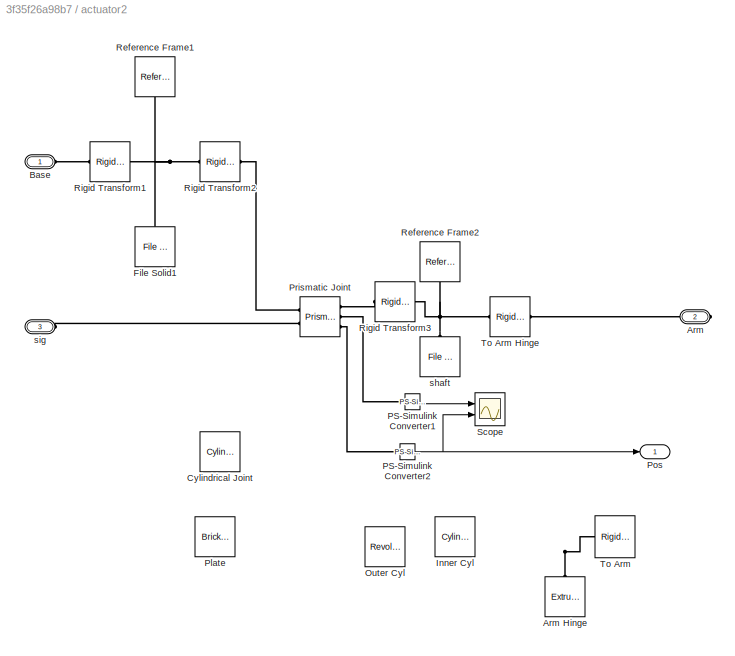
BLOCK [SubSystem] actuator2
  Commented = on
  Ports = [0, 1, 0, 0, 0, 2, 1]
  RequestExecContextInheritance = off
BLOCK [PMIOPort] actuator2/Arm
  Port = 2
  Side = Right
BLOCK [Reference] actuator2/Arm Hinge  REF=sm_lib/Body Elements/Extruded Solid
  Commented = on
  Ports = [0, 0, 0, 0, 0, 0, 1]
  SourceBlock = sm_lib/Body Elements/Extruded Solid
  SourceProductBaseCode = MS
  SourceType = Extruded Solid
BLOCK [PMIOPort] actuator2/Base
  Side = Left
BLOCK [Reference] actuator2/Cylindrical Joint  REF=sm_lib/Joints/Cylindrical
Joint
  Commented = on
  Ports = [0, 0, 0, 0, 0, 2, 1]
  SourceBlock = sm_lib/Joints/Cylindrical\nJoint
  SourceProductBaseCode = MS
  SourceType = Cylindrical\nJoint
BLOCK [Reference] actuator2/File Solid1  REF=sm_lib/Body Elements/File Solid
  NameLocation = right
  Ports = [0, 0, 0, 0, 0, 0, 1]
  SourceBlock = sm_lib/Body Elements/File Solid
  SourceProductBaseCode = MS
  SourceType = File Solid
BLOCK [Reference] actuator2/Inner Cyl  REF=sm_lib/Body Elements/Cylindrical Solid
  Commented = on
  Ports = [0, 0, 0, 0, 0, 1, 1]
  SourceBlock = sm_lib/Body Elements/Cylindrical Solid
  SourceProductBaseCode = MS
  SourceType = Cylindrical Solid
BLOCK [Reference] actuator2/Outer Cyl  REF=sm_lib/Body Elements/Revolved Solid
  Commented = on
  Ports = [0, 0, 0, 0, 0, 1, 1]
  SourceBlock = sm_lib/Body Elements/Revolved Solid
  SourceProductBaseCode = MS
  SourceType = Revolved Solid
BLOCK [Reference] actuator2/PS-Simulink Converter1  REF=nesl_utility/PS-Simulink
Converter
  Ports = [0, 1, 0, 0, 0, 1]
  SourceBlock = nesl_utility/PS-Simulink\nConverter
  SourceProductBaseCode = PW,SS
  SourceType = PS-Simulink\nConverter
BLOCK [Reference] actuator2/PS-Simulink Converter2  REF=nesl_utility/PS-Simulink
Converter
  Ports = [0, 1, 0, 0, 0, 1]
  SourceBlock = nesl_utility/PS-Simulink\nConverter
  SourceProductBaseCode = PW,SS
  SourceType = PS-Simulink\nConverter
BLOCK [Reference] actuator2/Plate  REF=sm_lib/Body Elements/Brick Solid
  Commented = on
  Ports = [0, 0, 0, 0, 0, 1, 1]
  SourceBlock = sm_lib/Body Elements/Brick Solid
  SourceProductBaseCode = MS
  SourceType = Brick Solid
BLOCK [Outport] actuator2/Pos
BLOCK [Reference] actuator2/Prismatic Joint  REF=sm_lib/Joints/Prismatic
Joint
  Ports = [0, 0, 0, 0, 0, 2, 3]
  SourceBlock = sm_lib/Joints/Prismatic\nJoint
  SourceProductBaseCode = MS
  SourceType = Prismatic\nJoint
BLOCK [Reference] actuator2/Reference Frame1  REF=sm_lib/Frames and
Transforms/Reference
Frame
  NameLocation = left
  Ports = [0, 0, 0, 0, 0, 0, 1]
  SourceBlock = sm_lib/Frames and\nTransforms/Reference\nFrame
  SourceProductBaseCode = MS
  SourceType = Reference\nFrame
BLOCK [Reference] actuator2/Reference Frame2  REF=sm_lib/Frames and
Transforms/Reference
Frame
  NameLocation = left
  Ports = [0, 0, 0, 0, 0, 0, 1]
  SourceBlock = sm_lib/Frames and\nTransforms/Reference\nFrame
  SourceProductBaseCode = MS
  SourceType = Reference\nFrame
BLOCK [Reference] actuator2/Rigid Transform1  REF=sm_lib/Frames and
Transforms/Rigid
Transform
  NameLocation = top
  Ports = [0, 0, 0, 0, 0, 1, 1]
  SourceBlock = sm_lib/Frames and\nTransforms/Rigid\nTransform
  SourceProductBaseCode = MS
  SourceType = Rigid\nTransform
BLOCK [Reference] actuator2/Rigid Transform2  REF=sm_lib/Frames and
Transforms/Rigid
Transform
  Ports = [0, 0, 0, 0, 0, 1, 1]
  SourceBlock = sm_lib/Frames and\nTransforms/Rigid\nTransform
  SourceProductBaseCode = MS
  SourceType = Rigid\nTransform
BLOCK [Reference] actuator2/Rigid Transform3  REF=sm_lib/Frames and
Transforms/Rigid
Transform
  NameLocation = top
  Ports = [0, 0, 0, 0, 0, 1, 1]
  SourceBlock = sm_lib/Frames and\nTransforms/Rigid\nTransform
  SourceProductBaseCode = MS
  SourceType = Rigid\nTransform
BLOCK [Scope] actuator2/Scope
  Floating = off
  NumInputPorts = 2
  Ports = [2]
BLOCK [Reference] actuator2/To Arm  REF=sm_lib/Frames and
Transforms/Rigid
Transform
  Commented = on
  Ports = [0, 0, 0, 0, 0, 1, 1]
  SourceBlock = sm_lib/Frames and\nTransforms/Rigid\nTransform
  SourceProductBaseCode = MS
  SourceType = Rigid\nTransform
BLOCK [Reference] actuator2/To Arm Hinge  REF=sm_lib/Frames and
Transforms/Rigid
Transform
  Ports = [0, 0, 0, 0, 0, 1, 1]
  SourceBlock = sm_lib/Frames and\nTransforms/Rigid\nTransform
  SourceProductBaseCode = MS
  SourceType = Rigid\nTransform
BLOCK [Reference] actuator2/shaft  REF=sm_lib/Body Elements/File Solid
  NameLocation = right
  Ports = [0, 0, 0, 0, 0, 0, 1]
  SourceBlock = sm_lib/Body Elements/File Solid
  SourceProductBaseCode = MS
  SourceType = File Solid
BLOCK [PMIOPort] actuator2/sig
  Port = 3
  Side = Left
BLOCK [SubSystem] actuator3
  Commented = on
  Ports = [0, 1, 0, 0, 0, 2, 1]
  RequestExecContextInheritance = off
BLOCK [PMIOPort] actuator3/Arm
  Port = 2
  Side = Right
BLOCK [Reference] actuator3/Arm Hinge  REF=sm_lib/Body Elements/Extruded Solid
  Commented = on
  Ports = [0, 0, 0, 0, 0, 0, 1]
  SourceBlock = sm_lib/Body Elements/Extruded Solid
  SourceProductBaseCode = MS
  SourceType = Extruded Solid
BLOCK [PMIOPort] actuator3/Base
  Side = Left
BLOCK [Reference] actuator3/Cylindrical Joint  REF=sm_lib/Joints/Cylindrical
Joint
  Commented = on
  Ports = [0, 0, 0, 0, 0, 2, 1]
  SourceBlock = sm_lib/Joints/Cylindrical\nJoint
  SourceProductBaseCode = MS
  SourceType = Cylindrical\nJoint
BLOCK [Reference] actuator3/File Solid1  REF=sm_lib/Body Elements/File Solid
  NameLocation = right
  Ports = [0, 0, 0, 0, 0, 0, 1]
  SourceBlock = sm_lib/Body Elements/File Solid
  SourceProductBaseCode = MS
  SourceType = File Solid
BLOCK [Reference] actuator3/Inner Cyl  REF=sm_lib/Body Elements/Cylindrical Solid
  Commented = on
  Ports = [0, 0, 0, 0, 0, 1, 1]
  SourceBlock = sm_lib/Body Elements/Cylindrical Solid
  SourceProductBaseCode = MS
  SourceType = Cylindrical Solid
BLOCK [Reference] actuator3/Outer Cyl  REF=sm_lib/Body Elements/Revolved Solid
  Commented = on
  Ports = [0, 0, 0, 0, 0, 1, 1]
  SourceBlock = sm_lib/Body Elements/Revolved Solid
  SourceProductBaseCode = MS
  SourceType = Revolved Solid
BLOCK [Reference] actuator3/PS-Simulink Converter1  REF=nesl_utility/PS-Simulink
Converter
  Ports = [0, 1, 0, 0, 0, 1]
  SourceBlock = nesl_utility/PS-Simulink\nConverter
  SourceProductBaseCode = PW,SS
  SourceType = PS-Simulink\nConverter
BLOCK [Reference] actuator3/PS-Simulink Converter2  REF=nesl_utility/PS-Simulink
Converter
  Ports = [0, 1, 0, 0, 0, 1]
  SourceBlock = nesl_utility/PS-Simulink\nConverter
  SourceProductBaseCode = PW,SS
  SourceType = PS-Simulink\nConverter
BLOCK [Reference] actuator3/Plate  REF=sm_lib/Body Elements/Brick Solid
  Commented = on
  Ports = [0, 0, 0, 0, 0, 1, 1]
  SourceBlock = sm_lib/Body Elements/Brick Solid
  SourceProductBaseCode = MS
  SourceType = Brick Solid
BLOCK [Outport] actuator3/Pos
BLOCK [Reference] actuator3/Prismatic Joint  REF=sm_lib/Joints/Prismatic
Joint
  Ports = [0, 0, 0, 0, 0, 2, 3]
  SourceBlock = sm_lib/Joints/Prismatic\nJoint
  SourceProductBaseCode = MS
  SourceType = Prismatic\nJoint
BLOCK [Reference] actuator3/Reference Frame1  REF=sm_lib/Frames and
Transforms/Reference
Frame
  NameLocation = left
  Ports = [0, 0, 0, 0, 0, 0, 1]
  SourceBlock = sm_lib/Frames and\nTransforms/Reference\nFrame
  SourceProductBaseCode = MS
  SourceType = Reference\nFrame
BLOCK [Reference] actuator3/Reference Frame2  REF=sm_lib/Frames and
Transforms/Reference
Frame
  NameLocation = left
  Ports = [0, 0, 0, 0, 0, 0, 1]
  SourceBlock = sm_lib/Frames and\nTransforms/Reference\nFrame
  SourceProductBaseCode = MS
  SourceType = Reference\nFrame
BLOCK [Reference] actuator3/Rigid Transform1  REF=sm_lib/Frames and
Transforms/Rigid
Transform
  NameLocation = top
  Ports = [0, 0, 0, 0, 0, 1, 1]
  SourceBlock = sm_lib/Frames and\nTransforms/Rigid\nTransform
  SourceProductBaseCode = MS
  SourceType = Rigid\nTransform
BLOCK [Reference] actuator3/Rigid Transform2  REF=sm_lib/Frames and
Transforms/Rigid
Transform
  Ports = [0, 0, 0, 0, 0, 1, 1]
  SourceBlock = sm_lib/Frames and\nTransforms/Rigid\nTransform
  SourceProductBaseCode = MS
  SourceType = Rigid\nTransform
BLOCK [Reference] actuator3/Rigid Transform3  REF=sm_lib/Frames and
Transforms/Rigid
Transform
  NameLocation = top
  Ports = [0, 0, 0, 0, 0, 1, 1]
  SourceBlock = sm_lib/Frames and\nTransforms/Rigid\nTransform
  SourceProductBaseCode = MS
  SourceType = Rigid\nTransform
BLOCK [Scope] actuator3/Scope
  Floating = off
  NumInputPorts = 2
  Ports = [2]
BLOCK [Reference] actuator3/To Arm  REF=sm_lib/Frames and
Transforms/Rigid
Transform
  Commented = on
  Ports = [0, 0, 0, 0, 0, 1, 1]
  SourceBlock = sm_lib/Frames and\nTransforms/Rigid\nTransform
  SourceProductBaseCode = MS
  SourceType = Rigid\nTransform
BLOCK [Reference] actuator3/To Arm Hinge  REF=sm_lib/Frames and
Transforms/Rigid
Transform
  Ports = [0, 0, 0, 0, 0, 1, 1]
  SourceBlock = sm_lib/Frames and\nTransforms/Rigid\nTransform
  SourceProductBaseCode = MS
  SourceType = Rigid\nTransform
BLOCK [Reference] actuator3/shaft  REF=sm_lib/Body Elements/File Solid
  NameLocation = right
  Ports = [0, 0, 0, 0, 0, 0, 1]
  SourceBlock = sm_lib/Body Elements/File Solid
  SourceProductBaseCode = MS
  SourceType = File Solid
BLOCK [PMIOPort] actuator3/sig
  Port = 3
  Side = Left
BLOCK [SubSystem] actuator4
  Ports = [0, 1, 0, 0, 0, 2, 1]
  RequestExecContextInheritance = off
BLOCK [PMIOPort] actuator4/Arm
  Port = 2
  Side = Right
BLOCK [Reference] actuator4/Arm Hinge  REF=sm_lib/Body Elements/Extruded Solid
  Commented = on
  Ports = [0, 0, 0, 0, 0, 0, 1]
  SourceBlock = sm_lib/Body Elements/Extruded Solid
  SourceProductBaseCode = MS
  SourceType = Extruded Solid
BLOCK [PMIOPort] actuator4/Base
  Side = Left
BLOCK [Reference] actuator4/Cylindrical Joint  REF=sm_lib/Joints/Cylindrical
Joint
  Commented = on
  Ports = [0, 0, 0, 0, 0, 2, 1]
  SourceBlock = sm_lib/Joints/Cylindrical\nJoint
  SourceProductBaseCode = MS
  SourceType = Cylindrical\nJoint
BLOCK [Reference] actuator4/File Solid1  REF=sm_lib/Body Elements/File Solid
  NameLocation = right
  Ports = [0, 0, 0, 0, 0, 0, 1]
  SourceBlock = sm_lib/Body Elements/File Solid
  SourceProductBaseCode = MS
  SourceType = File Solid
BLOCK [Reference] actuator4/Inner Cyl  REF=sm_lib/Body Elements/Cylindrical Solid
  Commented = on
  Ports = [0, 0, 0, 0, 0, 1, 1]
  SourceBlock = sm_lib/Body Elements/Cylindrical Solid
  SourceProductBaseCode = MS
  SourceType = Cylindrical Solid
BLOCK [Reference] actuator4/Outer Cyl  REF=sm_lib/Body Elements/Revolved Solid
  Commented = on
  Ports = [0, 0, 0, 0, 0, 1, 1]
  SourceBlock = sm_lib/Body Elements/Revolved Solid
  SourceProductBaseCode = MS
  SourceType = Revolved Solid
BLOCK [Reference] actuator4/PS-Simulink Converter1  REF=nesl_utility/PS-Simulink
Converter
  Ports = [0, 1, 0, 0, 0, 1]
  SourceBlock = nesl_utility/PS-Simulink\nConverter
  SourceProductBaseCode = PW,SS
  SourceType = PS-Simulink\nConverter
BLOCK [Reference] actuator4/PS-Simulink Converter2  REF=nesl_utility/PS-Simulink
Converter
  Ports = [0, 1, 0, 0, 0, 1]
  SourceBlock = nesl_utility/PS-Simulink\nConverter
  SourceProductBaseCode = PW,SS
  SourceType = PS-Simulink\nConverter
BLOCK [Reference] actuator4/Plate  REF=sm_lib/Body Elements/Brick Solid
  Commented = on
  Ports = [0, 0, 0, 0, 0, 1, 1]
  SourceBlock = sm_lib/Body Elements/Brick Solid
  SourceProductBaseCode = MS
  SourceType = Brick Solid
BLOCK [Outport] actuator4/Pos
BLOCK [Reference] actuator4/Prismatic Joint  REF=sm_lib/Joints/Prismatic
Joint
  Ports = [0, 0, 0, 0, 0, 2, 3]
  SourceBlock = sm_lib/Joints/Prismatic\nJoint
  SourceProductBaseCode = MS
  SourceType = Prismatic\nJoint
BLOCK [Reference] actuator4/Reference Frame1  REF=sm_lib/Frames and
Transforms/Reference
Frame
  NameLocation = left
  Ports = [0, 0, 0, 0, 0, 0, 1]
  SourceBlock = sm_lib/Frames and\nTransforms/Reference\nFrame
  SourceProductBaseCode = MS
  SourceType = Reference\nFrame
BLOCK [Reference] actuator4/Reference Frame2  REF=sm_lib/Frames and
Transforms/Reference
Frame
  NameLocation = left
  Ports = [0, 0, 0, 0, 0, 0, 1]
  SourceBlock = sm_lib/Frames and\nTransforms/Reference\nFrame
  SourceProductBaseCode = MS
  SourceType = Reference\nFrame
BLOCK [Reference] actuator4/Rigid Transform1  REF=sm_lib/Frames and
Transforms/Rigid
Transform
  NameLocation = top
  Ports = [0, 0, 0, 0, 0, 1, 1]
  SourceBlock = sm_lib/Frames and\nTransforms/Rigid\nTransform
  SourceProductBaseCode = MS
  SourceType = Rigid\nTransform
BLOCK [Reference] actuator4/Rigid Transform2  REF=sm_lib/Frames and
Transforms/Rigid
Transform
  Ports = [0, 0, 0, 0, 0, 1, 1]
  SourceBlock = sm_lib/Frames and\nTransforms/Rigid\nTransform
  SourceProductBaseCode = MS
  SourceType = Rigid\nTransform
BLOCK [Reference] actuator4/Rigid Transform3  REF=sm_lib/Frames and
Transforms/Rigid
Transform
  NameLocation = top
  Ports = [0, 0, 0, 0, 0, 1, 1]
  SourceBlock = sm_lib/Frames and\nTransforms/Rigid\nTransform
  SourceProductBaseCode = MS
  SourceType = Rigid\nTransform
BLOCK [Scope] actuator4/Scope
  Floating = off
  NumInputPorts = 2
  Ports = [2]
BLOCK [Reference] actuator4/To Arm  REF=sm_lib/Frames and
Transforms/Rigid
Transform
  Commented = on
  Ports = [0, 0, 0, 0, 0, 1, 1]
  SourceBlock = sm_lib/Frames and\nTransforms/Rigid\nTransform
  SourceProductBaseCode = MS
  SourceType = Rigid\nTransform
BLOCK [Reference] actuator4/To Arm Hinge  REF=sm_lib/Frames and
Transforms/Rigid
Transform
  Ports = [0, 0, 0, 0, 0, 1, 1]
  SourceBlock = sm_lib/Frames and\nTransforms/Rigid\nTransform
  SourceProductBaseCode = MS
  SourceType = Rigid\nTransform
BLOCK [Reference] actuator4/shaft  REF=sm_lib/Body Elements/File Solid
  NameLocation = right
  Ports = [0, 0, 0, 0, 0, 0, 1]
  SourceBlock = sm_lib/Body Elements/File Solid
  SourceProductBaseCode = MS
  SourceType = File Solid
BLOCK [PMIOPort] actuator4/sig
  Port = 3
  Side = Left
BLOCK [Reference] change to pos control 1  REF=nesl_utility/Simulink-PS
Converter
  Ports = [1, 0, 0, 0, 0, 0, 1]
  SourceBlock = nesl_utility/Simulink-PS\nConverter
  SourceProductBaseCode = PW,SS
  SourceType = Simulink-PS\nConverter
BLOCK [Reference] change to pos control 2  REF=nesl_utility/Simulink-PS
Converter
  Commented = on
  Ports = [1, 0, 0, 0, 0, 0, 1]
  SourceBlock = nesl_utility/Simulink-PS\nConverter
  SourceProductBaseCode = PW,SS
  SourceType = Simulink-PS\nConverter
BLOCK [Reference] changed to pos control  REF=nesl_utility/Simulink-PS
Converter
  Commented = on
  Ports = [1, 0, 0, 0, 0, 0, 1]
  SourceBlock = nesl_utility/Simulink-PS\nConverter
  SourceProductBaseCode = PW,SS
  SourceType = Simulink-PS\nConverter
BLOCK [Reference] changed to pos control1  REF=nesl_utility/Simulink-PS
Converter
  Ports = [1, 0, 0, 0, 0, 0, 1]
  SourceBlock = nesl_utility/Simulink-PS\nConverter
  SourceProductBaseCode = PW,SS
  SourceType = Simulink-PS\nConverter
BLOCK [Reference] fixed length rod  REF=sm_lib/Body Elements/File Solid
  Commented = on
  NameLocation = right
  Ports = [0, 0, 0, 0, 0, 0, 1]
  SourceBlock = sm_lib/Body Elements/File Solid
  SourceProductBaseCode = MS
  SourceType = File Solid
BLOCK [Reference] fixed length rod1  REF=sm_lib/Body Elements/File Solid
  NameLocation = right
  Ports = [0, 0, 0, 0, 0, 0, 1]
  SourceBlock = sm_lib/Body Elements/File Solid
  SourceProductBaseCode = MS
  SourceType = File Solid
BLOCK [Reference] rotate for joint 1  REF=sm_lib/Frames and
Transforms/Rigid
Transform
  Commented = on
  Ports = [0, 0, 0, 0, 0, 1, 1]
  SourceBlock = sm_lib/Frames and\nTransforms/Rigid\nTransform
  SourceProductBaseCode = MS
  SourceType = Rigid\nTransform
BLOCK [Reference] rotate for joint 10  REF=sm_lib/Frames and
Transforms/Rigid
Transform
  Commented = on
  NameLocation = top
  Ports = [0, 0, 0, 0, 0, 1, 1]
  SourceBlock = sm_lib/Frames and\nTransforms/Rigid\nTransform
  SourceProductBaseCode = MS
  SourceType = Rigid\nTransform
BLOCK [Reference] rotate for joint 12  REF=sm_lib/Frames and
Transforms/Rigid
Transform
  Commented = on
  Ports = [0, 0, 0, 0, 0, 1, 1]
  SourceBlock = sm_lib/Frames and\nTransforms/Rigid\nTransform
  SourceProductBaseCode = MS
  SourceType = Rigid\nTransform
BLOCK [Reference] rotate for joint 3  REF=sm_lib/Frames and
Transforms/Rigid
Transform
  NameLocation = top
  Ports = [0, 0, 0, 0, 0, 1, 1]
  SourceBlock = sm_lib/Frames and\nTransforms/Rigid\nTransform
  SourceProductBaseCode = MS
  SourceType = Rigid\nTransform
BLOCK [Reference] rotate for joint 4  REF=sm_lib/Frames and
Transforms/Rigid
Transform
  Ports = [0, 0, 0, 0, 0, 1, 1]
  SourceBlock = sm_lib/Frames and\nTransforms/Rigid\nTransform
  SourceProductBaseCode = MS
  SourceType = Rigid\nTransform
BLOCK [Reference] rotate for joint 5  REF=sm_lib/Frames and
Transforms/Rigid
Transform
  Ports = [0, 0, 0, 0, 0, 1, 1]
  SourceBlock = sm_lib/Frames and\nTransforms/Rigid\nTransform
  SourceProductBaseCode = MS
  SourceType = Rigid\nTransform
BLOCK [Reference] rotate for joint 8  REF=sm_lib/Frames and
Transforms/Rigid
Transform
  Commented = on
  Ports = [0, 0, 0, 0, 0, 1, 1]
  SourceBlock = sm_lib/Frames and\nTransforms/Rigid\nTransform
  SourceProductBaseCode = MS
  SourceType = Rigid\nTransform
BLOCK [Reference] trans to end of rod  REF=sm_lib/Frames and
Transforms/Rigid
Transform
  Commented = on
  Ports = [0, 0, 0, 0, 0, 1, 1]
  SourceBlock = sm_lib/Frames and\nTransforms/Rigid\nTransform
  SourceProductBaseCode = MS
  SourceType = Rigid\nTransform
BLOCK [Reference] trans to end of rod1  REF=sm_lib/Frames and
Transforms/Rigid
Transform
  Ports = [0, 0, 0, 0, 0, 1, 1]
  SourceBlock = sm_lib/Frames and\nTransforms/Rigid\nTransform
  SourceProductBaseCode = MS
  SourceType = Rigid\nTransform
ANNOTATION (root): 1. Plot ball position ( see code ) 2. Friction model: None , Stick-Slip Continuous 3. Contact surfaces: Hide , Show 4. Learn more about contact force library
ANNOTATION (root): Ball on Table (3D)
LINE Angle and Spd/Abs:1 -> Angle and Spd/MinMax:1
LINE Angle and Spd/From:1 -> Angle and Spd/pos:1
LINE Angle and Spd/MinMax:1 -> Angle and Spd/maxq:1
LINE Angle and Spd/Mux:1 -> Angle and Spd/Abs:1
LINE Angle and Spd/PS-Simulink Converter1:1 -> Angle and Spd/Mux:2
LINE Angle and Spd/PS-Simulink Converter:1 -> Angle and Spd/Mux:1
LINE Angle and Spd1/Abs:1 -> Angle and Spd1/MinMax:1
LINE Angle and Spd1/From:1 -> Angle and Spd1/pos:1
LINE Angle and Spd1/MinMax:1 -> Angle and Spd1/maxq:1
LINE Angle and Spd1/Mux:1 -> Angle and Spd1/Abs:1
LINE Angle and Spd1/PS-Simulink Converter1:1 -> Angle and Spd1/Mux:2
LINE Angle and Spd1/PS-Simulink Converter:1 -> Angle and Spd1/Mux:1
LINE Angle and Spd1:1 -> Ball Position1:1
LINE Angle and Spd1:2 -> Ball Position1:2
LINE Angle and Spd:1 -> Ball Position:1
LINE Angle and Spd:2 -> Ball Position:2
LINE PID Controller1:1 -> change to pos control 1:1
LINE PID Controller2:1 -> changed to pos control1:1
LINE PID Controller3:1 -> change to pos control 2:1
LINE PID Controller4:1 -> changed to pos control:1
LINE Sensing C1/Bus Selector:1 -> Sensing C1/Goto:1
LINE Sensing C1/S:1 -> Sensing C1/Bus Selector:1
LINE Sensing C2/Bus Selector:1 -> Sensing C2/Goto:1
LINE Sensing C2/S:1 -> Sensing C2/Bus Selector:1
LINE Sensing C3/Bus Selector:1 -> Sensing C3/Goto:1
LINE Sensing C3/S:1 -> Sensing C3/Bus Selector:1
LINE Signal Generator1:1 -> Relay1:1
LINE Signal Generator:1 -> Relay:1
LINE Sine Wave1:1 -> Sum1:1
LINE Sine Wave2:1 -> Sum2:1
LINE Sine Wave4:1 -> Sum3:1
LINE Sine Wave5:1 -> Sum4:1
LINE Sphere to Plane C1:1 -> Sensing C2:1
LINE Sphere to Plane C2:1 -> Sensing C1:1
LINE Sphere to Plane C3:1 -> Sensing C3:1
LINE Sum1:1 -> PID Controller1:1
LINE Sum2:1 -> PID Controller2:1
LINE Sum3:1 -> PID Controller3:1
LINE Sum4:1 -> PID Controller4:1
LINE Table Angle/Product:1 -> Table Angle/Demux:1
LINE Table Angle/Ramp:1 -> Table Angle/Saturation:1
LINE Table Angle/Repeating Sequence Stair1:1 -> Table Angle/Simulink-PS Converter1:1
LINE Table Angle/Repeating Sequence Stair:1 -> Table Angle/Simulink-PS Converter:1
LINE Table Angle/Saturation:1 -> Table Angle/Product:2
LINE Table Angle/Sine Wave:1 -> Table Angle/Product:1
LINE Table Angle1/Product:1 -> Table Angle1/Demux:1
LINE Table Angle1/Ramp:1 -> Table Angle1/Saturation:1
LINE Table Angle1/Repeating Sequence Stair1:1 -> Table Angle1/Simulink-PS Converter1:1
LINE Table Angle1/Repeating Sequence Stair:1 -> Table Angle1/Simulink-PS Converter:1
LINE Table Angle1/Saturation:1 -> Table Angle1/Product:2
LINE Table Angle1/Sine Wave:1 -> Table Angle1/Product:1
LINE Table Angle2/Product:1 -> Table Angle2/Demux:1
LINE Table Angle2/Ramp:1 -> Table Angle2/Saturation:1
LINE Table Angle2/Repeating Sequence Stair1:1 -> Table Angle2/Simulink-PS Converter1:1
LINE Table Angle2/Repeating Sequence Stair:1 -> Table Angle2/Simulink-PS Converter:1
LINE Table Angle2/Saturation:1 -> Table Angle2/Product:2
LINE Table Angle2/Sine Wave:1 -> Table Angle2/Product:1
LINE actuator1/PS-Simulink Converter1:1 -> actuator1/Scope:1
NET actuator1/PS-Simulink Converter2:1 -> actuator1/Pos:1, actuator1/Scope:2
LINE actuator1:1 -> Delay3:1
LINE actuator2/PS-Simulink Converter1:1 -> actuator2/Scope:1
NET actuator2/PS-Simulink Converter2:1 -> actuator2/Pos:1, actuator2/Scope:2
LINE actuator2:1 -> Delay1:1
LINE actuator3/PS-Simulink Converter1:1 -> actuator3/Scope:1
NET actuator3/PS-Simulink Converter2:1 -> actuator3/Pos:1, actuator3/Scope:2
LINE actuator3:1 -> Delay:1
LINE actuator4/PS-Simulink Converter1:1 -> actuator4/Scope:1
NET actuator4/PS-Simulink Converter2:1 -> actuator4/Pos:1, actuator4/Scope:2
LINE actuator4:1 -> Delay2:1
PNET net1: 6-DOF Joint1:LConn1 -- Table1:LConn2 -- Universal Joint1:RConn1
PNET net2: 6-DOF Joint1:RConn1 -- Sphere to Plane C2:LConn1 -- Sphere1:LConn1
PNET net3: 6-DOF Joint2:LConn1 -- Spherical Joint4:RConn1 -- Table2:LConn2
PNET net4: 6-DOF Joint2:RConn1 -- Sphere to Plane C3:LConn1 -- Sphere2:LConn1
PNET net5: 6-DOF Joint:LConn1 -- Table:LConn1 -- Universal Joint:RConn1
PNET net6: 6-DOF Joint:RConn1 -- Sphere to Plane C1:LConn1 -- Sphere:LConn1
PLINE Angle and Spd/PS-Simulink Converter1:LConn1 -- Angle and Spd/qy:RConn1
PLINE Angle and Spd/PS-Simulink Converter:LConn1 -- Angle and Spd/qx:RConn1
PLINE Angle and Spd1/PS-Simulink Converter1:LConn1 -- Angle and Spd1/qy:RConn1
PLINE Angle and Spd1/PS-Simulink Converter:LConn1 -- Angle and Spd1/qx:RConn1
PLINE Angle and Spd1:LConn1 -- Universal Joint1:RConn2
PLINE Angle and Spd1:LConn2 -- Universal Joint1:RConn3
PLINE Angle and Spd:LConn1 -- Universal Joint:RConn2
PLINE Angle and Spd:LConn2 -- Universal Joint:RConn3
PNET net7: Config/C:RConn1 -- Config/Mechanism Configuration:RConn1 -- Config/Solver Configuration:RConn1
PNET net8: Config1/C:RConn1 -- Config1/Mechanism Configuration:RConn1 -- Config1/Solver Configuration:RConn1
PNET net9: Config1:LConn1 -- Floor3:LConn1 -- World Frame1:RConn1
PNET net10: Config2/C:RConn1 -- Config2/Mechanism Configuration:RConn1 -- Config2/Solver Configuration:RConn1
PNET net11: Config2:LConn1 -- Floor1:LConn1 -- World Frame2:RConn1
PNET net12: Config:LConn1 -- Universal Joint:LConn1 -- World Frame:RConn1
PNET net13: Floor1/Fc:RConn1 -- Floor1/Ffw:RConn1 -- Floor1/File Solid:RConn1 -- Floor1/Floor XForm4:LConn1 -- Floor1/Floor XForm6:LConn1 -- Floor1/Reference Frame:RConn1
PLINE Floor1/Ffb:RConn1 -- Floor1/Floor XForm5:RConn1
PLINE Floor1/Ffr:RConn1 -- Floor1/Floor XForm2:RConn1
PLINE Floor1/Floor XForm1:LConn1 -- Floor1/Floor XForm4:RConn1
PLINE Floor1/Floor XForm1:RConn1 -- Floor1/Floor XForm2:LConn1
PLINE Floor1/Floor XForm3:LConn1 -- Floor1/Floor XForm6:RConn1
PLINE Floor1/Floor XForm3:RConn1 -- Floor1/Floor XForm5:LConn1
PLINE Floor1:RConn1 -- Weld Joint1:LConn1
PLINE Floor1:RConn2 -- rotate for joint 4:LConn1
PLINE Floor1:RConn3 -- Spherical Joint2:LConn1
PNET net14: Floor3/Fc:RConn1 -- Floor3/Ffw:RConn1 -- Floor3/File Solid:RConn1 -- Floor3/Floor XForm4:LConn1 -- Floor3/Floor XForm6:LConn1 -- Floor3/Reference Frame:RConn1
PLINE Floor3/Ffb:RConn1 -- Floor3/Floor XForm5:RConn1
PLINE Floor3/Ffr:RConn1 -- Floor3/Floor XForm2:RConn1
PLINE Floor3/Floor XForm1:LConn1 -- Floor3/Floor XForm4:RConn1
PLINE Floor3/Floor XForm1:RConn1 -- Floor3/Floor XForm2:LConn1
PLINE Floor3/Floor XForm3:LConn1 -- Floor3/Floor XForm6:RConn1
PLINE Floor3/Floor XForm3:RConn1 -- Floor3/Floor XForm5:LConn1
PLINE Floor3:RConn1 -- Weld Joint9:LConn1
PLINE Floor3:RConn2 -- rotate for joint 12:LConn1
PLINE Floor3:RConn3 -- Spherical Joint:LConn1
PLINE Revolute Joint1:LConn1 -- rotate for joint 12:RConn1
PLINE Revolute Joint1:RConn1 -- rotate for joint 10:RConn1
PLINE Revolute Joint2:LConn1 -- rotate for joint 4:RConn1
PLINE Revolute Joint2:RConn1 -- rotate for joint 3:RConn1
PLINE Sphere to Plane C1:RConn1 -- Table:RConn1
PLINE Sphere to Plane C2:RConn1 -- Table1:RConn1
PLINE Sphere to Plane C3:RConn1 -- Table2:RConn1
PLINE Spherical Joint1:LConn1 -- Table1:LConn1
PLINE Spherical Joint1:RConn1 -- trans to end of rod:RConn1
PNET net15: Spherical Joint2:RConn1 -- fixed length rod1:RConn1 -- trans to end of rod1:LConn1
PLINE Spherical Joint3:LConn1 -- Table2:LConn1
PLINE Spherical Joint3:RConn1 -- trans to end of rod1:RConn1
PLINE Spherical Joint4:LConn1 -- actuator1:RConn1
PLINE Spherical Joint5:LConn1 -- actuator4:RConn1
PLINE Spherical Joint5:RConn1 -- Table2:LConn3
PNET net16: Spherical Joint:RConn1 -- fixed length rod:RConn1 -- trans to end of rod:LConn1
PLINE Table Angle/Simulink-PS Converter1:RConn1 -- Table Angle/qy:RConn1
PLINE Table Angle/Simulink-PS Converter:RConn1 -- Table Angle/qx:RConn1
PLINE Table Angle1/Simulink-PS Converter1:RConn1 -- Table Angle1/qy:RConn1
PLINE Table Angle1/Simulink-PS Converter:RConn1 -- Table Angle1/qx:RConn1
PLINE Table Angle1:RConn1 -- Universal Joint1:LConn2
PLINE Table Angle1:RConn2 -- Universal Joint1:LConn3
PLINE Table Angle2/Simulink-PS Converter1:RConn1 -- Table Angle2/qy:RConn1
PLINE Table Angle2/Simulink-PS Converter:RConn1 -- Table Angle2/qx:RConn1
PLINE Table Angle2:RConn1 -- Universal Joint2:LConn2
PLINE Table Angle2:RConn2 -- Universal Joint2:LConn3
PLINE Table Angle:RConn1 -- Universal Joint:LConn2
PLINE Table Angle:RConn2 -- Universal Joint:LConn3
PNET net17: Table/B:RConn1 -- Table/File Solid:RConn1 -- Table/Transform Contact Ref:LConn1
PLINE Table/F:RConn1 -- Table/Transform Contact Ref:RConn1
PNET net18: Table1/B:RConn1 -- Table1/File Solid:RConn1 -- Table1/Floor XForm4:LConn1 -- Table1/Floor XForm6:LConn1 -- Table1/Reference Frame:RConn1 -- Table1/Transform Contact Ref:LConn1
PLINE Table1/Fc:RConn1 -- Table1/Transform Contact Ref:RConn1
PLINE Table1/Ffb:RConn1 -- Table1/Floor XForm2:RConn1
PLINE Table1/Ffr:RConn1 -- Table1/Floor XForm5:RConn1
PLINE Table1/Floor XForm1:LConn1 -- Table1/Floor XForm4:RConn1
PLINE Table1/Floor XForm1:RConn1 -- Table1/Floor XForm5:LConn1
PLINE Table1/Floor XForm2:LConn1 -- Table1/Floor XForm3:RConn1
PLINE Table1/Floor XForm3:LConn1 -- Table1/Floor XForm6:RConn1
PLINE Table1:LConn3 -- Universal Joint2:RConn1
PNET net19: Table2/B:RConn1 -- Table2/File Solid:RConn1 -- Table2/Floor XForm4:LConn1 -- Table2/Floor XForm6:LConn1 -- Table2/Reference Frame:RConn1 -- Table2/Transform Contact Ref:LConn1
PLINE Table2/Fc:RConn1 -- Table2/Transform Contact Ref:RConn1
PLINE Table2/Ffb:RConn1 -- Table2/Floor XForm3:RConn1
PLINE Table2/Ffr:RConn1 -- Table2/Floor XForm1:RConn1
PLINE Table2/Floor XForm1:LConn1 -- Table2/Floor XForm4:RConn1
PLINE Table2/Floor XForm3:LConn1 -- Table2/Floor XForm6:RConn1
PLINE Universal Joint1:LConn1 -- rotate for joint 8:RConn1
PLINE Universal Joint2:LConn1 -- rotate for joint 1:RConn1
PLINE Weld Joint1:RConn1 -- actuator1:LConn1
PLINE Weld Joint9:RConn1 -- actuator2:LConn1
PLINE actuator1/Arm Hinge:RConn1 -- actuator1/To Arm:LConn1
PLINE actuator1/Arm:RConn1 -- actuator1/To Arm Hinge:RConn1
PLINE actuator1/Base:RConn1 -- actuator1/Rigid Transform1:RConn1
PNET net20: actuator1/File Solid1:RConn1 -- actuator1/Reference Frame1:RConn1 -- actuator1/Rigid Transform1:LConn1 -- actuator1/Rigid Transform2:LConn1
PLINE actuator1/PS-Simulink Converter1:LConn1 -- actuator1/Prismatic Joint:RConn2
PLINE actuator1/PS-Simulink Converter2:LConn1 -- actuator1/Prismatic Joint:RConn3
PLINE actuator1/Prismatic Joint:LConn1 -- actuator1/Rigid Transform2:RConn1
PLINE actuator1/Prismatic Joint:LConn2 -- actuator1/sig:RConn1
PLINE actuator1/Prismatic Joint:RConn1 -- actuator1/Rigid Transform3:RConn1
PNET net21: actuator1/Reference Frame2:RConn1 -- actuator1/Rigid Transform3:LConn1 -- actuator1/To Arm Hinge:LConn1 -- actuator1/shaft:RConn1
PLINE actuator1:LConn2 -- change to pos control 1:RConn1
PLINE actuator2/Arm Hinge:RConn1 -- actuator2/To Arm:LConn1
PLINE actuator2/Arm:RConn1 -- actuator2/To Arm Hinge:RConn1
PLINE actuator2/Base:RConn1 -- actuator2/Rigid Transform1:RConn1
PNET net22: actuator2/File Solid1:RConn1 -- actuator2/Reference Frame1:RConn1 -- actuator2/Rigid Transform1:LConn1 -- actuator2/Rigid Transform2:LConn1
PLINE actuator2/PS-Simulink Converter1:LConn1 -- actuator2/Prismatic Joint:RConn2
PLINE actuator2/PS-Simulink Converter2:LConn1 -- actuator2/Prismatic Joint:RConn3
PLINE actuator2/Prismatic Joint:LConn1 -- actuator2/Rigid Transform2:RConn1
PLINE actuator2/Prismatic Joint:LConn2 -- actuator2/sig:RConn1
PLINE actuator2/Prismatic Joint:RConn1 -- actuator2/Rigid Transform3:RConn1
PNET net23: actuator2/Reference Frame2:RConn1 -- actuator2/Rigid Transform3:LConn1 -- actuator2/To Arm Hinge:LConn1 -- actuator2/shaft:RConn1
PLINE actuator2:LConn2 -- change to pos control 2:RConn1
PLINE actuator2:RConn1 -- rotate for joint 8:LConn1
PLINE actuator3/Arm Hinge:RConn1 -- actuator3/To Arm:LConn1
PLINE actuator3/Arm:RConn1 -- actuator3/To Arm Hinge:RConn1
PLINE actuator3/Base:RConn1 -- actuator3/Rigid Transform1:RConn1
PNET net24: actuator3/File Solid1:RConn1 -- actuator3/Reference Frame1:RConn1 -- actuator3/Rigid Transform1:LConn1 -- actuator3/Rigid Transform2:LConn1
PLINE actuator3/PS-Simulink Converter1:LConn1 -- actuator3/Prismatic Joint:RConn2
PLINE actuator3/PS-Simulink Converter2:LConn1 -- actuator3/Prismatic Joint:RConn3
PLINE actuator3/Prismatic Joint:LConn1 -- actuator3/Rigid Transform2:RConn1
PLINE actuator3/Prismatic Joint:LConn2 -- actuator3/sig:RConn1
PLINE actuator3/Prismatic Joint:RConn1 -- actuator3/Rigid Transform3:RConn1
PNET net25: actuator3/Reference Frame2:RConn1 -- actuator3/Rigid Transform3:LConn1 -- actuator3/To Arm Hinge:LConn1 -- actuator3/shaft:RConn1
PLINE actuator3:LConn1 -- rotate for joint 10:LConn1
PLINE actuator3:LConn2 -- changed to pos control:RConn1
PLINE actuator3:RConn1 -- rotate for joint 1:LConn1
PLINE actuator4/Arm Hinge:RConn1 -- actuator4/To Arm:LConn1
PLINE actuator4/Arm:RConn1 -- actuator4/To Arm Hinge:RConn1
PLINE actuator4/Base:RConn1 -- actuator4/Rigid Transform1:RConn1
PNET net26: actuator4/File Solid1:RConn1 -- actuator4/Reference Frame1:RConn1 -- actuator4/Rigid Transform1:LConn1 -- actuator4/Rigid Transform2:LConn1
PLINE actuator4/PS-Simulink Converter1:LConn1 -- actuator4/Prismatic Joint:RConn2
PLINE actuator4/PS-Simulink Converter2:LConn1 -- actuator4/Prismatic Joint:RConn3
PLINE actuator4/Prismatic Joint:LConn1 -- actuator4/Rigid Transform2:RConn1
PLINE actuator4/Prismatic Joint:LConn2 -- actuator4/sig:RConn1
PLINE actuator4/Prismatic Joint:RConn1 -- actuator4/Rigid Transform3:RConn1
PNET net27: actuator4/Reference Frame2:RConn1 -- actuator4/Rigid Transform3:LConn1 -- actuator4/To Arm Hinge:LConn1 -- actuator4/shaft:RConn1
PLINE actuator4:LConn1 -- rotate for joint 3:LConn1
PLINE actuator4:LConn2 -- changed to pos control1:RConn1
note: NET lines group one-source signal fan-out (src -> all destinations, sorted); 1:1 wires keep LINE; PNET lines group multi-terminal physical nets as a canonical sorted terminal list (undirected conserving connections); 2-terminal nets keep the pairwise PLINE form
